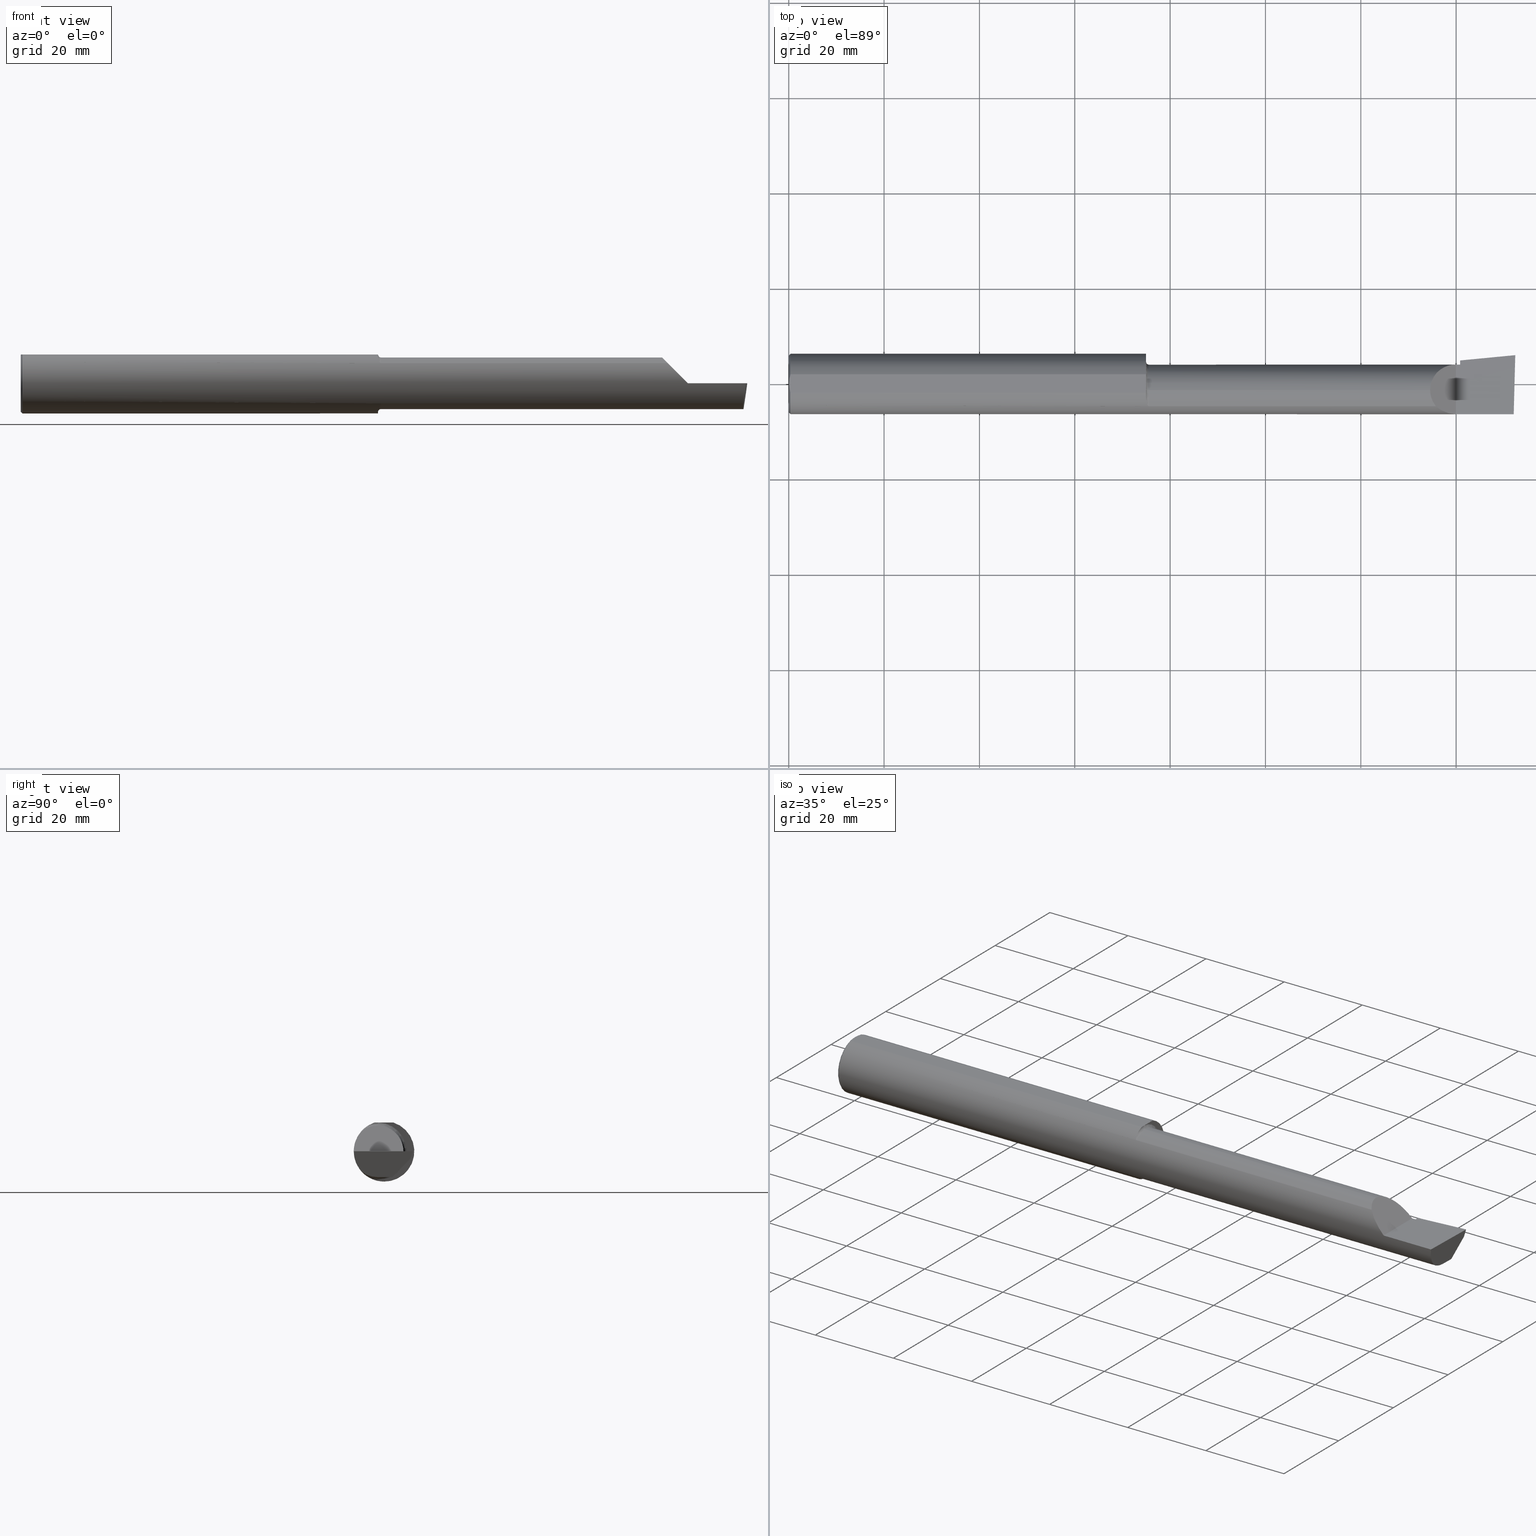
[diagram: canonical four-view strip — front | top / right | iso, engineering-drawing reading convention]
A machine part, canonical four-view strip (front | top / right | iso — engineering-drawing reading convention). The complete STEP part file that produces these views, byte-faithful:
ISO-10303-21;
HEADER;
FILE_DESCRIPTION (( 'STEP AP214' ),
    '1' );
FILE_NAME ('B4903000.STEP',
    '2020-05-06T20:05:47',
    ( '' ),
    ( '' ),
    'SwSTEP 2.0',
    'SolidWorks 2018',
    '' );
FILE_SCHEMA (( 'AUTOMOTIVE_DESIGN' ));
ENDSEC;

DATA;
#1 = PLANE ( 'NONE',  #303 ) ;
#2 = FACE_OUTER_BOUND ( 'NONE', #70, .T. ) ;
#3 = CARTESIAN_POINT ( 'NONE',  ( 5.540349815208493567, 0.05592018782259736837, -0.1832193089843159595 ) ) ;
#4 = LINE ( 'NONE', #632, #526 ) ;
#5 = VECTOR ( 'NONE', #753, 39.37007874015748854 ) ;
#6 = DIRECTION ( 'NONE',  ( 0.0000000000000000000, -1.000000000000000000, 0.0000000000000000000 ) ) ;
#7 = CIRCLE ( 'NONE', #148, 0.2498499999999999888 ) ;
#8 = DIRECTION ( 'NONE',  ( -1.000000000000000000, -0.0000000000000000000, -0.0000000000000000000 ) ) ;
#9 = EDGE_CURVE ( 'NONE', #310, #76, #333, .T. ) ;
#10 = CARTESIAN_POINT ( 'NONE',  ( 4.678149108241350816E-32, 0.1601499999999999591, 4.235963549344508711E-16 ) ) ;
#11 = DIRECTION ( 'NONE',  ( -0.9922060308645490601, 0.02598182930468754051, 0.1218693434051391772 ) ) ;
#12 = FACE_OUTER_BOUND ( 'NONE', #236, .T. ) ;
#13 = ORIENTED_EDGE ( 'NONE', *, *, #163, .F. ) ;
#14 = VERTEX_POINT ( 'NONE', #48 ) ;
#15 = SURFACE_STYLE_USAGE ( .BOTH. , #427 ) ;
#16 = CARTESIAN_POINT ( 'NONE',  ( 5.544999999999999929, 0.2148312740513258212, -0.01988118725737623299 ) ) ;
#17 = DIRECTION ( 'NONE',  ( 9.717439401676380705E-34, 1.707404996040164512E-16, 1.000000000000000000 ) ) ;
#18 = DIRECTION ( 'NONE',  ( -0.0000000000000000000, 1.000000000000000000, 1.224646799147353207E-16 ) ) ;
#19 = EDGE_CURVE ( 'NONE', #496, #695, #371, .T. ) ;
#20 = FILL_AREA_STYLE_COLOUR ( '', #328 ) ;
#21 = PRODUCT_DEFINITION_SHAPE ( 'NONE', 'NONE',  #720 ) ;
#22 =( BOUNDED_CURVE ( )  B_SPLINE_CURVE ( 3, ( #723, #344, #398, #389 ),
 .UNSPECIFIED., .F., .F. ) 
 B_SPLINE_CURVE_WITH_KNOTS ( ( 4, 4 ),
 ( 2.868174658477152583, 2.883234730632701304 ),
 .UNSPECIFIED. ) 
 CURVE ( )  GEOMETRIC_REPRESENTATION_ITEM ( )  RATIONAL_B_SPLINE_CURVE ( ( 1.000000000000000000, 0.9999810996081960335, 0.9999810996081960335, 1.000000000000000000 ) ) 
 REPRESENTATION_ITEM ( '' )  );
#23 = CARTESIAN_POINT ( 'NONE',  ( 4.678149108241350816E-32, -0.2498499999999999888, 4.235963549344508711E-16 ) ) ;
#24 = ORIENTED_EDGE ( 'NONE', *, *, #37, .T. ) ;
#25 = FACE_OUTER_BOUND ( 'NONE', #62, .T. ) ;
#26 = VECTOR ( 'NONE', #81, 39.37007874015748854 ) ;
#27 = AXIS2_PLACEMENT_3D ( 'NONE', #596, #324, #556 ) ;
#28 = CARTESIAN_POINT ( 'NONE',  ( 5.296849999999999170, 0.07186037918017482151, 0.2131500000000000061 ) ) ;
#29 = VERTEX_POINT ( 'NONE', #412 ) ;
#30 = PLANE ( 'NONE',  #258 ) ;
#31 = LINE ( 'NONE', #554, #634 ) ;
#32 = ORIENTED_EDGE ( 'NONE', *, *, #56, .T. ) ;
#33 = ORIENTED_EDGE ( 'NONE', *, *, #106, .F. ) ;
#34 = PRODUCT_RELATED_PRODUCT_CATEGORY ( 'part', '', ( #661 ) ) ;
#35 = EDGE_LOOP ( 'NONE', ( #94, #145 ) ) ;
#36 = LINE ( 'NONE', #309, #334 ) ;
#37 = EDGE_CURVE ( 'NONE', #150, #759, #22, .T. ) ;
#38 = APPLICATION_CONTEXT ( 'automotive_design' ) ;
#39 = CIRCLE ( 'NONE', #99, 0.2348499999999996424 ) ;
#40 = ADVANCED_FACE ( 'NONE', ( #65 ), #760, .F. ) ;
#41 = CARTESIAN_POINT ( 'NONE',  ( 5.510000000000000675, -0.2500000000000000555, -1.849216666712503932E-16 ) ) ;
#42 = ADVANCED_FACE ( 'NONE', ( #214 ), #424, .T. ) ;
#43 = CARTESIAN_POINT ( 'NONE',  ( 2.949999999999990852, -0.1016924291521900947, -0.2293274111511736102 ) ) ;
#44 = FACE_OUTER_BOUND ( 'NONE', #688, .T. ) ;
#45 = ORIENTED_EDGE ( 'NONE', *, *, #156, .F. ) ;
#46 = ORIENTED_EDGE ( 'NONE', *, *, #327, .F. ) ;
#47 = CARTESIAN_POINT ( 'NONE',  ( 0.01499999999999999771, 0.0000000000000000000, 0.0000000000000000000 ) ) ;
#48 = CARTESIAN_POINT ( 'NONE',  ( 2.975000000000000533, -0.1868028301886801024, -0.1659208399614078011 ) ) ;
#49 = AXIS2_PLACEMENT_3D ( 'NONE', #90, #498, #616 ) ;
#50 = PLANE ( 'NONE',  #381 ) ;
#51 = CARTESIAN_POINT ( 'NONE',  ( 5.390325100969867833, -0.2278791102234771215, 0.1196748990301337162 ) ) ;
#52 = EDGE_LOOP ( 'NONE', ( #45, #286, #330, #622 ) ) ;
#53 =( BOUNDED_CURVE ( )  B_SPLINE_CURVE ( 3, ( #505, #28, #558, #422 ),
 .UNSPECIFIED., .F., .T. ) 
 B_SPLINE_CURVE_WITH_KNOTS ( ( 4, 4 ),
 ( 0.0000000000000000000, 1.570796326794897002 ),
 .UNSPECIFIED. ) 
 CURVE ( )  GEOMETRIC_REPRESENTATION_ITEM ( )  RATIONAL_B_SPLINE_CURVE ( ( 1.000000000000000000, 0.8047378541243649375, 0.8047378541243649375, 1.000000000000000000 ) ) 
 REPRESENTATION_ITEM ( '' )  );
#54 = ORIENTED_EDGE ( 'NONE', *, *, #288, .F. ) ;
#55 = FACE_OUTER_BOUND ( 'NONE', #555, .T. ) ;
#56 = EDGE_CURVE ( 'NONE', #635, #93, #611, .T. ) ;
#57 = CYLINDRICAL_SURFACE ( 'NONE', #367, 0.2131499999999999506 ) ;
#58 = CARTESIAN_POINT ( 'NONE',  ( 0.0000000000000000000, 0.0000000000000000000, 0.0000000000000000000 ) ) ;
#59 = VECTOR ( 'NONE', #372, 39.37007874015748143 ) ;
#60 = EDGE_LOOP ( 'NONE', ( #465, #86, #600, #565, #343, #385 ) ) ;
#61 = DIRECTION ( 'NONE',  ( 0.0000000000000000000, 0.0000000000000000000, 1.000000000000000000 ) ) ;
#62 = EDGE_LOOP ( 'NONE', ( #758, #444, #636, #261, #233 ) ) ;
#63 = CARTESIAN_POINT ( 'NONE',  ( 0.01499999999999999771, 0.0000000000000000000, 0.0000000000000000000 ) ) ;
#64 = CARTESIAN_POINT ( 'NONE',  ( 5.544999999999999929, 0.1601500000000002366, 4.235963549344514135E-16 ) ) ;
#65 = FACE_OUTER_BOUND ( 'NONE', #135, .T. ) ;
#66 = AXIS2_PLACEMENT_3D ( 'NONE', #197, #719, #225 ) ;
#67 = CARTESIAN_POINT ( 'NONE',  ( 5.544999999999999929, -0.2500000000000000555, -1.887870261551340527E-16 ) ) ;
#68 = CARTESIAN_POINT ( 'NONE',  ( 2.950000900032403006, -0.05299999999999998462, 0.2378500000000221548 ) ) ;
#69 = EDGE_CURVE ( 'NONE', #449, #470, #649, .T. ) ;
#70 = EDGE_LOOP ( 'NONE', ( #210, #390, #718, #294 ) ) ;
#71 = PLANE ( 'NONE',  #290 ) ;
#72 = CARTESIAN_POINT ( 'NONE',  ( 6.000000000000016875, 0.2381500000000415784, 1.307616116217359986E-13 ) ) ;
#73 = CARTESIAN_POINT ( 'NONE',  ( 0.01499999999999999771, 3.059780027669661931E-17, 0.2498499999999999888 ) ) ;
#74 = CARTESIAN_POINT ( 'NONE',  ( 2.975000000000000533, -0.05299999999999996381, -0.2381499999999996953 ) ) ;
#75 = FACE_OUTER_BOUND ( 'NONE', #85, .T. ) ;
#76 = VERTEX_POINT ( 'NONE', #359 ) ;
#77 =( NAMED_UNIT ( * ) SI_UNIT ( $, .STERADIAN. ) SOLID_ANGLE_UNIT ( ) );
#78 = DIRECTION ( 'NONE',  ( 0.06658005426110771841, -0.6914603011188220627, -0.7193398003386546335 ) ) ;
#79 = VERTEX_POINT ( 'NONE', #454 ) ;
#80 = CARTESIAN_POINT ( 'NONE',  ( 2.975000000000000533, -0.1868028301886802411, 0.1659208399614077178 ) ) ;
#81 = DIRECTION ( 'NONE',  ( 0.0000000000000000000, 0.6963153109074925462, 0.7177360153954946975 ) ) ;
#82 = ORIENTED_EDGE ( 'NONE', *, *, #184, .T. ) ;
#83 = CARTESIAN_POINT ( 'NONE',  ( 0.003000000000000061211, -0.01298133447204027208, 0.2378500000000000614 ) ) ;
#84 = CARTESIAN_POINT ( 'NONE',  ( 2.950000000000000622, 0.0000000000000000000, 0.0000000000000000000 ) ) ;
#85 = EDGE_LOOP ( 'NONE', ( #313, #620, #429, #264, #484, #54, #24, #580 ) ) ;
#86 = ORIENTED_EDGE ( 'NONE', *, *, #132, .T. ) ;
#87 = AXIS2_PLACEMENT_3D ( 'NONE', #647, #266, #297 ) ;
#88 =( BOUNDED_CURVE ( )  B_SPLINE_CURVE ( 3, ( #641, #443, #205, #433 ),
 .UNSPECIFIED., .F., .F. ) 
 B_SPLINE_CURVE_WITH_KNOTS ( ( 4, 4 ),
 ( 3.399950576546887593, 3.405787439796297722 ),
 .UNSPECIFIED. ) 
 CURVE ( )  GEOMETRIC_REPRESENTATION_ITEM ( )  RATIONAL_B_SPLINE_CURVE ( ( 1.000000000000000000, 0.9999971609209656886, 0.9999971609209656886, 1.000000000000000000 ) ) 
 REPRESENTATION_ITEM ( '' )  );
#89 = CARTESIAN_POINT ( 'NONE',  ( 6.000000000000000888, 0.2998500000000000609, 0.2378499999999999504 ) ) ;
#90 = CARTESIAN_POINT ( 'NONE',  ( 2.950000000000000622, 0.0000000000000000000, 0.0000000000000000000 ) ) ;
#91 = DIRECTION ( 'NONE',  ( -1.000000000000000000, -0.0000000000000000000, -0.0000000000000000000 ) ) ;
#92 = EDGE_CURVE ( 'NONE', #470, #449, #39, .T. ) ;
#93 = VERTEX_POINT ( 'NONE', #68 ) ;
#94 = ORIENTED_EDGE ( 'NONE', *, *, #92, .T. ) ;
#95 = CARTESIAN_POINT ( 'NONE',  ( 5.344079160038589293, -0.1868028301886780762, 0.1659208399614099383 ) ) ;
#96 = CIRCLE ( 'NONE', #292, 0.2131499999999997008 ) ;
#97 = ADVANCED_BREP_SHAPE_REPRESENTATION ( 'B4903000', ( #525, #674 ), #336 ) ;
#98 = DIRECTION ( 'NONE',  ( 0.0000000000000000000, -1.138839417068644240E-16, -1.000000000000000000 ) ) ;
#99 = AXIS2_PLACEMENT_3D ( 'NONE', #701, #298, #644 ) ;
#100 = AXIS2_PLACEMENT_3D ( 'NONE', #577, #174, #519 ) ;
#101 = VERTEX_POINT ( 'NONE', #642 ) ;
#102 = AXIS2_PLACEMENT_3D ( 'NONE', #251, #262, #666 ) ;
#103 = ORIENTED_EDGE ( 'NONE', *, *, #156, .T. ) ;
#104 = ORIENTED_EDGE ( 'NONE', *, *, #653, .F. ) ;
#105 = ORIENTED_EDGE ( 'NONE', *, *, #144, .F. ) ;
#106 = EDGE_CURVE ( 'NONE', #635, #629, #353, .T. ) ;
#107 = B_SPLINE_CURVE_WITH_KNOTS ( 'NONE', 3,
 ( #728, #552, #209, #435 ),
 .UNSPECIFIED., .F., .F.,
 ( 4, 4 ),
 ( 0.4999999999997267186, 1.000000000000000000 ),
 .UNSPECIFIED. ) ;
#108 = CARTESIAN_POINT ( 'NONE',  ( 2.965875558094659858, -0.1799506819598047369, -0.1733486322212172137 ) ) ;
#109 = ADVANCED_FACE ( 'NONE', ( #740 ), #57, .T. ) ;
#110 = EDGE_CURVE ( 'NONE', #614, #451, #271, .T. ) ;
#111 = VERTEX_POINT ( 'NONE', #699 ) ;
#112 = LINE ( 'NONE', #628, #709 ) ;
#113 = FACE_OUTER_BOUND ( 'NONE', #593, .T. ) ;
#114 = ADVANCED_FACE ( 'NONE', ( #693 ), #183, .T. ) ;
#115 = CARTESIAN_POINT ( 'NONE',  ( 5.968492717492763333, -0.1868028301886794917, -0.1659208399614086338 ) ) ;
#116 = ORIENTED_EDGE ( 'NONE', *, *, #9, .F. ) ;
#117 = CARTESIAN_POINT ( 'NONE',  ( 6.000000000000000888, -0.05299999999999998462, -0.2131499999999999229 ) ) ;
#118 = EDGE_LOOP ( 'NONE', ( #676, #166, #738 ) ) ;
#119 = CARTESIAN_POINT ( 'NONE',  ( 5.532795049205048166, 0.1343794326159110653, -0.1015966078791004507 ) ) ;
#120 = VERTEX_POINT ( 'NONE', #765 ) ;
#121 = CARTESIAN_POINT ( 'NONE',  ( 2.950000900032403006, -0.05299999999999998462, 0.2378500000000221548 ) ) ;
#122 = EDGE_LOOP ( 'NONE', ( #272, #230 ) ) ;
#123 = ORIENTED_EDGE ( 'NONE', *, *, #414, .F. ) ;
#124 = SURFACE_STYLE_FILL_AREA ( #493 ) ;
#125 = ORIENTED_EDGE ( 'NONE', *, *, #204, .F. ) ;
#126 = DIRECTION ( 'NONE',  ( -0.09584575252021169944, 0.9953961983671798519, 0.0000000000000000000 ) ) ;
#127 = CARTESIAN_POINT ( 'NONE',  ( 0.01499999999999999771, 0.0000000000000000000, -0.2498499999999999888 ) ) ;
#128 = CARTESIAN_POINT ( 'NONE',  ( 2.950000000000000622, -0.05299999999999998462, 0.0000000000000000000 ) ) ;
#129 = APPLICATION_PROTOCOL_DEFINITION ( 'draft international standard', 'automotive_design', 1998, #38 ) ;
#130 = CARTESIAN_POINT ( 'NONE',  ( 2.975000000000000533, -0.1868028301886802411, 0.1659208399614077178 ) ) ;
#131 = CARTESIAN_POINT ( 'NONE',  ( 2.957343635746628507, -0.1582230848692707248, 0.1936715022401941932 ) ) ;
#132 = EDGE_CURVE ( 'NONE', #287, #725, #235, .T. ) ;
#133 = CARTESIAN_POINT ( 'NONE',  ( 0.003000000000000063380, 0.01299872814765626154, 0.2378499999999999226 ) ) ;
#134 = CARTESIAN_POINT ( 'NONE',  ( 2.950000000000000622, 0.2998500000000000609, 0.2378499999999999504 ) ) ;
#135 = EDGE_LOOP ( 'NONE', ( #406, #116, #492, #105, #458, #404 ) ) ;
#136 = FACE_OUTER_BOUND ( 'NONE', #118, .T. ) ;
#137 = CARTESIAN_POINT ( 'NONE',  ( 2.950000000000000622, -0.07650098038590467941, 0.2378500000000000059 ) ) ;
#138 = CARTESIAN_POINT ( 'NONE',  ( 2.955553274544309161, -0.1495649063853958793, 0.2004446339470375427 ) ) ;
#139 = EDGE_CURVE ( 'NONE', #470, #430, #761, .T. ) ;
#140 = CARTESIAN_POINT ( 'NONE',  ( 5.973097331270539989, -0.2278791102234774546, -0.1196748990301325505 ) ) ;
#141 = DIRECTION ( 'NONE',  ( -1.000000000000000000, -0.0000000000000000000, -0.0000000000000000000 ) ) ;
#142 = DIRECTION ( 'NONE',  ( 0.0000000000000000000, 0.0000000000000000000, 1.000000000000000000 ) ) ;
#143 = ORIENTED_EDGE ( 'NONE', *, *, #446, .F. ) ;
#144 = EDGE_CURVE ( 'NONE', #725, #423, #478, .T. ) ;
#145 = ORIENTED_EDGE ( 'NONE', *, *, #69, .T. ) ;
#146 = VECTOR ( 'NONE', #237, 39.37007874015748143 ) ;
#147 = AXIS2_PLACEMENT_3D ( 'NONE', #366, #11, #523 ) ;
#148 = AXIS2_PLACEMENT_3D ( 'NONE', #767, #411, #247 ) ;
#149 = AXIS2_PLACEMENT_3D ( 'NONE', #63, #476, #189 ) ;
#150 = VERTEX_POINT ( 'NONE', #119 ) ;
#151 = ORIENTED_EDGE ( 'NONE', *, *, #144, .T. ) ;
#152 = EDGE_LOOP ( 'NONE', ( #584, #675, #604, #438, #503 ) ) ;
#153 =( BOUNDED_CURVE ( )  B_SPLINE_CURVE ( 3, ( #428, #206, #369, #256 ),
 .UNSPECIFIED., .F., .F. ) 
 B_SPLINE_CURVE_WITH_KNOTS ( ( 4, 4 ),
 ( 5.604538515477355709, 6.283185307179586232 ),
 .UNSPECIFIED. ) 
 CURVE ( )  GEOMETRIC_REPRESENTATION_ITEM ( )  RATIONAL_B_SPLINE_CURVE ( ( 1.000000000000000000, 0.9619867256453034088, 0.9619867256453034088, 1.000000000000000000 ) ) 
 REPRESENTATION_ITEM ( '' )  );
#154 = CARTESIAN_POINT ( 'NONE',  ( 2.950000000000000622, 0.2998500000000000609, 0.2378499999999999504 ) ) ;
#155 = DIRECTION ( 'NONE',  ( 0.0000000000000000000, 0.0000000000000000000, -1.000000000000000000 ) ) ;
#156 = EDGE_CURVE ( 'NONE', #629, #120, #627, .T. ) ;
#157 = CARTESIAN_POINT ( 'NONE',  ( 0.003000000000000035624, 4.000211044293764417E-17, 0.2378500000000000059 ) ) ;
#158 = CARTESIAN_POINT ( 'NONE',  ( 0.0000000000000000000, -0.05299999999999996381, -0.2131499999999999506 ) ) ;
#159 = CARTESIAN_POINT ( 'NONE',  ( 5.510000000000000675, -0.2500000000000000555, -1.849216666712503932E-16 ) ) ;
#160 = ORIENTED_EDGE ( 'NONE', *, *, #681, .T. ) ;
#161 = LINE ( 'NONE', #164, #746 ) ;
#162 = LINE ( 'NONE', #364, #735 ) ;
#163 = EDGE_CURVE ( 'NONE', #415, #652, #466, .T. ) ;
#164 = CARTESIAN_POINT ( 'NONE',  ( 2.976291640117795900, -0.05299999999999998462, 9.489815156492843319E-17 ) ) ;
#165 = VERTEX_POINT ( 'NONE', #403 ) ;
#166 = ORIENTED_EDGE ( 'NONE', *, *, #743, .T. ) ;
#167 = ORIENTED_EDGE ( 'NONE', *, *, #653, .T. ) ;
#168 = ORIENTED_EDGE ( 'NONE', *, *, #331, .F. ) ;
#169 = STYLED_ITEM ( 'NONE', ( #407 ), #525 ) ;
#170 = EDGE_LOOP ( 'NONE', ( #373, #160, #751, #103 ) ) ;
#171 = CARTESIAN_POINT ( 'NONE',  ( 2.970138573936400128, -0.1849738682364337750, -0.1679602226613244043 ) ) ;
#172 = ADVANCED_FACE ( 'NONE', ( #513 ), #323, .T. ) ;
#173 = ORIENTED_EDGE ( 'NONE', *, *, #204, .T. ) ;
#174 = DIRECTION ( 'NONE',  ( -1.000000000000000000, -0.0000000000000000000, -0.0000000000000000000 ) ) ;
#175 = EDGE_CURVE ( 'NONE', #392, #111, #215, .T. ) ;
#176 = AXIS2_PLACEMENT_3D ( 'NONE', #543, #8, #142 ) ;
#177 = AXIS2_PLACEMENT_3D ( 'NONE', #74, #18, #434 ) ;
#178 = LENGTH_MEASURE_WITH_UNIT ( LENGTH_MEASURE( 0.02539999999999999897 ), #531 );
#179 = VECTOR ( 'NONE', #320, 39.37007874015748143 ) ;
#180 = EDGE_LOOP ( 'NONE', ( #257, #673, #238, #173, #431 ) ) ;
#181 = ORIENTED_EDGE ( 'NONE', *, *, #273, .F. ) ;
#182 = CARTESIAN_POINT ( 'NONE',  ( 5.544999999999999929, -0.05299999999999998462, 0.0000000000000000000 ) ) ;
#183 = PLANE ( 'NONE',  #402 ) ;
#184 = EDGE_CURVE ( 'NONE', #101, #310, #4, .T. ) ;
#185 = ORIENTED_EDGE ( 'NONE', *, *, #223, .T. ) ;
#186 = CARTESIAN_POINT ( 'NONE',  ( 2.969285582744839669, -0.1841881072713816569, -0.1688230283719342195 ) ) ;
#187 = CARTESIAN_POINT ( 'NONE',  ( 0.0000000000000000000, -0.05299999999999998462, 0.0000000000000000000 ) ) ;
#188 = TOROIDAL_SURFACE ( 'NONE', #388, 0.2381499999999996953, 0.02499999999999992159 ) ;
#189 = DIRECTION ( 'NONE',  ( 0.0000000000000000000, 0.0000000000000000000, 1.000000000000000000 ) ) ;
#190 = CARTESIAN_POINT ( 'NONE',  ( 2.969290397284159777, -0.1841927918507058615, 0.1688179232533547902 ) ) ;
#191 = CARTESIAN_POINT ( 'NONE',  ( 0.01499999999999999771, 0.07650098038587500870, 0.2378499999999999226 ) ) ;
#192 = AXIS2_PLACEMENT_3D ( 'NONE', #534, #594, #479 ) ;
#193 = DIRECTION ( 'NONE',  ( 0.0000000000000000000, 0.2936076258024031271, 0.9559260233253805694 ) ) ;
#194 = EDGE_CURVE ( 'NONE', #76, #677, #617, .T. ) ;
#195 = ORIENTED_EDGE ( 'NONE', *, *, #194, .T. ) ;
#196 = CARTESIAN_POINT ( 'NONE',  ( 2.962758562425230835, -0.1743135686468876011, 0.1790760091940033216 ) ) ;
#197 = CARTESIAN_POINT ( 'NONE',  ( 2.975000000000000533, -0.05299999999999998462, 0.0000000000000000000 ) ) ;
#198 = DIRECTION ( 'NONE',  ( -0.1053106618241714670, -0.6976485211320174740, -0.7086580314005225256 ) ) ;
#199 = VECTOR ( 'NONE', #212, 39.37007874015748143 ) ;
#200 = VERTEX_POINT ( 'NONE', #397 ) ;
#201 = CLOSED_SHELL ( 'NONE', ( #42, #630, #679, #461, #517, #285, #340, #394, #575, #752, #749, #172, #570, #232, #335, #226, #109, #520, #282, #457, #114, #40 ) ) ;
#202 = CARTESIAN_POINT ( 'NONE',  ( 0.0000000000000000000, 0.0000000000000000000, 0.0000000000000000000 ) ) ;
#203 = DIRECTION ( 'NONE',  ( 0.0000000000000000000, 1.000000000000000000, 0.0000000000000000000 ) ) ;
#204 = EDGE_CURVE ( 'NONE', #430, #451, #7, .T. ) ;
#205 = CARTESIAN_POINT ( 'NONE',  ( 5.541916792879874265, 0.05627666367902717931, -0.1830073912696828786 ) ) ;
#206 = CARTESIAN_POINT ( 'NONE',  ( 5.313215146136122335, -0.1485302233682047890, 0.1967848538638760358 ) ) ;
#207 = CARTESIAN_POINT ( 'NONE',  ( 0.004068542164723867871, -0.02585015905295367025, 0.2378500000000000059 ) ) ;
#208 = AXIS2_PLACEMENT_3D ( 'NONE', #730, #17, #724 ) ;
#209 = CARTESIAN_POINT ( 'NONE',  ( 2.950000000000000622, -0.06096394231309006095, 0.2378500000000000059 ) ) ;
#210 = ORIENTED_EDGE ( 'NONE', *, *, #244, .T. ) ;
#211 = VECTOR ( 'NONE', #714, 39.37007874015748143 ) ;
#212 = DIRECTION ( 'NONE',  ( -1.000000000000000000, -0.0000000000000000000, -0.0000000000000000000 ) ) ;
#213 = EDGE_CURVE ( 'NONE', #629, #727, #550, .T. ) ;
#214 = FACE_OUTER_BOUND ( 'NONE', #509, .T. ) ;
#215 = CIRCLE ( 'NONE', #100, 0.2131499999999997008 ) ;
#216 = ORIENTED_EDGE ( 'NONE', *, *, #337, .F. ) ;
#217 = VECTOR ( 'NONE', #203, 39.37007874015748143 ) ;
#218 = VERTEX_POINT ( 'NONE', #64 ) ;
#219 = AXIS2_PLACEMENT_3D ( 'NONE', #485, #416, #638 ) ;
#220 = AXIS2_PLACEMENT_3D ( 'NONE', #375, #318, #436 ) ;
#221 = ORIENTED_EDGE ( 'NONE', *, *, #574, .T. ) ;
#222 = FACE_OUTER_BOUND ( 'NONE', #170, .T. ) ;
#223 = EDGE_CURVE ( 'NONE', #677, #101, #667, .T. ) ;
#224 = LINE ( 'NONE', #597, #321 ) ;
#225 = DIRECTION ( 'NONE',  ( 0.0000000000000000000, 0.0000000000000000000, 1.000000000000000000 ) ) ;
#226 = ADVANCED_FACE ( 'NONE', ( #686 ), #71, .T. ) ;
#227 = PRODUCT_CONTEXT ( 'NONE', #643, 'mechanical' ) ;
#228 = UNCERTAINTY_MEASURE_WITH_UNIT (LENGTH_MEASURE( 1.000000000000000082E-05 ), #395, 'distance_accuracy_value', 'NONE');
#229 = LENGTH_MEASURE_WITH_UNIT ( LENGTH_MEASURE( 0.02539999999999999897 ), #338 );
#230 = ORIENTED_EDGE ( 'NONE', *, *, #426, .F. ) ;
#231 = DIRECTION ( 'NONE',  ( 0.9953961983671800740, 0.09584575252021025615, -1.636475167022361930E-17 ) ) ;
#232 = ADVANCED_FACE ( 'NONE', ( #222 ), #494, .T. ) ;
#233 = ORIENTED_EDGE ( 'NONE', *, *, #175, .T. ) ;
#234 = DIRECTION ( 'NONE',  ( 1.000000000000000000, 0.0000000000000000000, 0.0000000000000000000 ) ) ;
#235 = LINE ( 'NONE', #405, #566 ) ;
#236 = EDGE_LOOP ( 'NONE', ( #707, #379, #640, #623, #448 ) ) ;
#237 = DIRECTION ( 'NONE',  ( -1.000000000000000000, -0.0000000000000000000, -0.0000000000000000000 ) ) ;
#238 = ORIENTED_EDGE ( 'NONE', *, *, #139, .T. ) ;
#239 = LENGTH_MEASURE_WITH_UNIT ( LENGTH_MEASURE( 0.02539999999999999897 ), #662 );
#240 = PRESENTATION_LAYER_ASSIGNMENT (  '', '', ( #169 ) ) ;
#241 = DIRECTION ( 'NONE',  ( 0.0000000000000000000, 0.0000000000000000000, 1.000000000000000000 ) ) ;
#242 = DIRECTION ( 'NONE',  ( 0.0000000000000000000, 0.0000000000000000000, 1.000000000000000000 ) ) ;
#243 = CARTESIAN_POINT ( 'NONE',  ( 2.952700302592144332, -0.1312404656039937167, 0.2128935242986057796 ) ) ;
#244 = EDGE_CURVE ( 'NONE', #652, #739, #153, .T. ) ;
#245 = CARTESIAN_POINT ( 'NONE',  ( 2.950000000000000622, -0.08036415094339764698, -0.2365726648265745469 ) ) ;
#246 = CARTESIAN_POINT ( 'NONE',  ( 0.01499999999998188026, -0.07650098038590467941, 0.2378500000000000059 ) ) ;
#247 = DIRECTION ( 'NONE',  ( 0.0000000000000000000, 0.0000000000000000000, 1.000000000000000000 ) ) ;
#248 = LINE ( 'NONE', #73, #682 ) ;
#249 = CARTESIAN_POINT ( 'NONE',  ( 0.008199648822849016708, 0.05156445313451110679, 0.2378500000000000059 ) ) ;
#250 = CARTESIAN_POINT ( 'NONE',  ( 2.967016733372314530, -0.1817333077058777557, -0.1714754572696055857 ) ) ;
#251 = CARTESIAN_POINT ( 'NONE',  ( 2.950000000000000622, 0.1851499999999997037, 0.0000000000000000000 ) ) ;
#252 = AXIS2_PLACEMENT_3D ( 'NONE', #128, #472, #61 ) ;
#253 = ORIENTED_EDGE ( 'NONE', *, *, #538, .T. ) ;
#254 = UNCERTAINTY_MEASURE_WITH_UNIT (LENGTH_MEASURE( 1.000000000000000082E-05 ), #544, 'distance_accuracy_value', 'NONE');
#255 = CARTESIAN_POINT ( 'NONE',  ( 2.973548866468136875, -0.1868028301907328492, 0.1659208399590970107 ) ) ;
#256 = CARTESIAN_POINT ( 'NONE',  ( 5.296849999999999170, -0.05299999999999998462, 0.2131499999999999506 ) ) ;
#257 = ORIENTED_EDGE ( 'NONE', *, *, #400, .F. ) ;
#258 = AXIS2_PLACEMENT_3D ( 'NONE', #89, #98, #507 ) ;
#259 = DIRECTION ( 'NONE',  ( 0.0000000000000000000, 0.6963153109074925462, 0.7177360153954946975 ) ) ;
#260 = DIRECTION ( 'NONE',  ( -0.0000000000000000000, 0.0000000000000000000, 1.000000000000000000 ) ) ;
#261 = ORIENTED_EDGE ( 'NONE', *, *, #346, .T. ) ;
#262 = DIRECTION ( 'NONE',  ( 1.000000000000000000, 0.0000000000000000000, 0.0000000000000000000 ) ) ;
#263 = DIRECTION ( 'NONE',  ( -1.000000000000000000, -0.0000000000000000000, -0.0000000000000000000 ) ) ;
#264 = ORIENTED_EDGE ( 'NONE', *, *, #569, .T. ) ;
#265 = SHAPE_DEFINITION_REPRESENTATION ( #21, #97 ) ;
#266 = DIRECTION ( 'NONE',  ( -1.000000000000000000, -0.0000000000000000000, -0.0000000000000000000 ) ) ;
#267 = EDGE_CURVE ( 'NONE', #695, #79, #609, .T. ) ;
#268 = COLOUR_RGB ( '',0.7529411764705882248, 0.7529411764705882248, 0.7529411764705882248 ) ;
#269 = VECTOR ( 'NONE', #729, 39.37007874015748143 ) ;
#270 = ORIENTED_EDGE ( 'NONE', *, *, #163, .T. ) ;
#271 = LINE ( 'NONE', #296, #146 ) ;
#272 = ORIENTED_EDGE ( 'NONE', *, *, #288, .T. ) ;
#273 = EDGE_CURVE ( 'NONE', #759, #293, #511, .T. ) ;
#274 = VERTEX_POINT ( 'NONE', #708 ) ;
#275 = FACE_OUTER_BOUND ( 'NONE', #60, .T. ) ;
#276 = EDGE_LOOP ( 'NONE', ( #82, #387, #195, #185 ) ) ;
#277 = MECHANICAL_DESIGN_GEOMETRIC_PRESENTATION_REPRESENTATION (  '', ( #169 ), #319 ) ;
#278 = DIRECTION ( 'NONE',  ( -0.7071067811865511255, 0.0000000000000000000, 0.7071067811865440200 ) ) ;
#279 = EDGE_CURVE ( 'NONE', #423, #310, #224, .T. ) ;
#280 = ORIENTED_EDGE ( 'NONE', *, *, #346, .F. ) ;
#281 = VECTOR ( 'NONE', #703, 39.37007874015748143 ) ;
#282 = ADVANCED_FACE ( 'NONE', ( #445 ), #419, .F. ) ;
#283 = CIRCLE ( 'NONE', #149, 0.2498499999999999888 ) ;
#284 = CARTESIAN_POINT ( 'NONE',  ( 2.973547768521294987, -0.1868028301886801579, -0.1659208399614078844 ) ) ;
#285 = ADVANCED_FACE ( 'NONE', ( #55 ), #305, .T. ) ;
#286 = ORIENTED_EDGE ( 'NONE', *, *, #213, .T. ) ;
#287 = VERTEX_POINT ( 'NONE', #480 ) ;
#288 = EDGE_CURVE ( 'NONE', #150, #274, #598, .T. ) ;
#289 = AXIS2_PLACEMENT_3D ( 'NONE', #756, #345, #689 ) ;
#290 = AXIS2_PLACEMENT_3D ( 'NONE', #665, #610, #260 ) ;
#291 = CARTESIAN_POINT ( 'NONE',  ( 5.510000000000000675, -0.2498499999999999888, -1.849216666712503932E-16 ) ) ;
#292 = AXIS2_PLACEMENT_3D ( 'NONE', #348, #764, #408 ) ;
#293 = VERTEX_POINT ( 'NONE', #668 ) ;
#294 = ORIENTED_EDGE ( 'NONE', *, *, #768, .T. ) ;
#295 = CARTESIAN_POINT ( 'NONE',  ( 5.534569588231482484, 0.1159501401920730174, -0.1355866241796506999 ) ) ;
#296 = CARTESIAN_POINT ( 'NONE',  ( 0.0000000000000000000, -0.07650098038587496707, 0.2378499999999999226 ) ) ;
#297 = DIRECTION ( 'NONE',  ( 0.0000000000000000000, 0.0000000000000000000, 1.000000000000000000 ) ) ;
#298 = DIRECTION ( 'NONE',  ( -1.000000000000000000, -0.0000000000000000000, -0.0000000000000000000 ) ) ;
#299 = CARTESIAN_POINT ( 'NONE',  ( 2.961285743882608124, -0.1704402150608125832, -0.1827701868778688066 ) ) ;
#300 = CARTESIAN_POINT ( 'NONE',  ( 2.951680550596498698, -0.1214972057705740599, 0.2186080375779515528 ) ) ;
#301 = CYLINDRICAL_SURFACE ( 'NONE', #704, 0.2131499999999999506 ) ;
#302 = CARTESIAN_POINT ( 'NONE',  ( 5.296849999999999170, -0.05299999999999998462, 0.2131499999999999506 ) ) ;
#303 = AXIS2_PLACEMENT_3D ( 'NONE', #58, #474, #763 ) ;
#304 = CARTESIAN_POINT ( 'NONE',  ( 2.975000000000000533, -0.05299999999999998462, 0.2381499999999996953 ) ) ;
#305 = PLANE ( 'NONE',  #608 ) ;
#306 = CARTESIAN_POINT ( 'NONE',  ( 5.966195468375009803, -0.05299999999999998462, -0.2131499999999999229 ) ) ;
#307 = CARTESIAN_POINT ( 'NONE',  ( 5.528944985009567326, 0.1743638780700113855, -0.06000000000000002554 ) ) ;
#308 = ORIENTED_EDGE ( 'NONE', *, *, #267, .T. ) ;
#309 = CARTESIAN_POINT ( 'NONE',  ( 5.544999999999999929, 0.2148312740513258212, -0.01988118725737623299 ) ) ;
#310 = VERTEX_POINT ( 'NONE', #715 ) ;
#311 = CARTESIAN_POINT ( 'NONE',  ( 2.970144309637440916, -0.1849788583324340763, 0.1679547276881058482 ) ) ;
#312 = DIRECTION ( 'NONE',  ( 0.0000000000000000000, 0.0000000000000000000, -1.000000000000000000 ) ) ;
#313 = ORIENTED_EDGE ( 'NONE', *, *, #446, .T. ) ;
#314 = ORIENTED_EDGE ( 'NONE', *, *, #694, .T. ) ;
#315 = B_SPLINE_CURVE_WITH_KNOTS ( 'NONE', 3,
 ( #439, #284, #354, #171, #186, #250, #108, #650, #299, #646, #590, #766, #43, #245 ),
 .UNSPECIFIED., .F., .F.,
 ( 4, 2, 2, 2, 2, 2, 4 ),
 ( 1.967619685358722855E-07, 0.0001090840123077841469, 0.0002179712626470324229, 0.0004357457633255543725, 0.0008712947646826149683, 0.001742392767396734642, 0.003484588772824973122 ),
 .UNSPECIFIED. ) ;
#316 = CARTESIAN_POINT ( 'NONE',  ( 0.01120982745448973784, -0.06412238594540853320, 0.2378500000000000059 ) ) ;
#317 = DIRECTION ( 'NONE',  ( 1.000000000000000000, 0.0000000000000000000, 0.0000000000000000000 ) ) ;
#318 = DIRECTION ( 'NONE',  ( -1.000000000000000000, -0.0000000000000000000, -0.0000000000000000000 ) ) ;
#319 =( GEOMETRIC_REPRESENTATION_CONTEXT ( 3 ) GLOBAL_UNCERTAINTY_ASSIGNED_CONTEXT ( ( #254 ) ) GLOBAL_UNIT_ASSIGNED_CONTEXT ( ( #544, #488, #77 ) ) REPRESENTATION_CONTEXT ( 'NONE', 'WORKASPACE' ) );
#320 = DIRECTION ( 'NONE',  ( -0.0000000000000000000, 1.000000000000000000, -0.0000000000000000000 ) ) ;
#321 = VECTOR ( 'NONE', #198, 39.37007874015748143 ) ;
#322 = CIRCLE ( 'NONE', #475, 0.2131500000000002282 ) ;
#323 = CONICAL_SURFACE ( 'NONE', #447, 0.2498499999999999888, 0.7853981633974601584 ) ;
#324 = DIRECTION ( 'NONE',  ( -1.000000000000000000, -0.0000000000000000000, -0.0000000000000000000 ) ) ;
#325 = ORIENTED_EDGE ( 'NONE', *, *, #213, .F. ) ;
#326 = CARTESIAN_POINT ( 'NONE',  ( 0.0000000000000000000, -0.05299999999999998462, 0.0000000000000000000 ) ) ;
#327 = EDGE_CURVE ( 'NONE', #120, #79, #747, .T. ) ;
#328 = COLOUR_RGB ( '',0.7529411764705882248, 0.7529411764705882248, 0.7529411764705882248 ) ;
#329 = ORIENTED_EDGE ( 'NONE', *, *, #737, .F. ) ;
#330 = ORIENTED_EDGE ( 'NONE', *, *, #421, .T. ) ;
#331 = EDGE_CURVE ( 'NONE', #293, #165, #162, .T. ) ;
#332 = ORIENTED_EDGE ( 'NONE', *, *, #685, .T. ) ;
#333 = LINE ( 'NONE', #639, #696 ) ;
#334 = VECTOR ( 'NONE', #259, 39.37007874015748854 ) ;
#335 = ADVANCED_FACE ( 'NONE', ( #136 ), #613, .T. ) ;
#336 =( GEOMETRIC_REPRESENTATION_CONTEXT ( 3 ) GLOBAL_UNCERTAINTY_ASSIGNED_CONTEXT ( ( #228 ) ) GLOBAL_UNIT_ASSIGNED_CONTEXT ( ( #395, #754, #687 ) ) REPRESENTATION_CONTEXT ( 'NONE', 'WORKASPACE' ) );
#337 = EDGE_CURVE ( 'NONE', #614, #200, #420, .T. ) ;
#338 =( LENGTH_UNIT ( ) NAMED_UNIT ( * ) SI_UNIT ( $, .METRE. ) );
#339 = CARTESIAN_POINT ( 'NONE',  ( 5.544999999999999929, -0.05299999999999998462, -0.2131499999999999229 ) ) ;
#340 = ADVANCED_FACE ( 'NONE', ( #573 ), #557, .T. ) ;
#341 = PRESENTATION_STYLE_ASSIGNMENT (( #518 ) ) ;
#342 = TOROIDAL_SURFACE ( 'NONE', #87, 0.2381499999999996953, 0.02499999999999992159 ) ;
#343 = ORIENTED_EDGE ( 'NONE', *, *, #538, .F. ) ;
#344 = CARTESIAN_POINT ( 'NONE',  ( 5.536975816846314125, 0.1338694103809240643, -0.1025372660271250541 ) ) ;
#345 = DIRECTION ( 'NONE',  ( -1.000000000000000000, -0.0000000000000000000, -0.0000000000000000000 ) ) ;
#346 = EDGE_CURVE ( 'NONE', #200, #392, #432, .T. ) ;
#347 = DIRECTION ( 'NONE',  ( 0.02617694830786730306, 0.9996573249755573709, -2.890951868598569845E-18 ) ) ;
#348 = CARTESIAN_POINT ( 'NONE',  ( 2.975000000000000533, -0.05299999999999998462, 0.0000000000000000000 ) ) ;
#349 = LINE ( 'NONE', #10, #211 ) ;
#350 = AXIS2_PLACEMENT_3D ( 'NONE', #304, #6, #355 ) ;
#351 = PLANE ( 'NONE',  #562 ) ;
#352 = CARTESIAN_POINT ( 'NONE',  ( 5.987221270274238449, -0.2498499999999999888, -2.376254313274097985E-16 ) ) ;
#353 = CIRCLE ( 'NONE', #252, 0.2381499999999996953 ) ;
#354 = CARTESIAN_POINT ( 'NONE',  ( 2.972232603162240139, -0.1862758070845882408, -0.1665151405181416744 ) ) ;
#355 = DIRECTION ( 'NONE',  ( 0.0000000000000000000, 0.0000000000000000000, -1.000000000000000000 ) ) ;
#356 = DIRECTION ( 'NONE',  ( 0.09165774897393347276, -0.9519021185660623274, 0.2923717047227273880 ) ) ;
#357 =( BOUNDED_CURVE ( )  B_SPLINE_CURVE ( 3, ( #691, #140, #486, #352 ),
 .UNSPECIFIED., .F., .F. ) 
 B_SPLINE_CURVE_WITH_KNOTS ( ( 4, 4 ),
 ( 0.6344818218798808918, 1.360746882514761280 ),
 .UNSPECIFIED. ) 
 CURVE ( )  GEOMETRIC_REPRESENTATION_ITEM ( )  RATIONAL_B_SPLINE_CURVE ( ( 1.000000000000000000, 0.9565258159410998662, 0.9565258159410998662, 1.000000000000000000 ) ) 
 REPRESENTATION_ITEM ( '' )  );
#358 = CARTESIAN_POINT ( 'NONE',  ( 5.528944985009567326, 0.1743638780700113855, -0.06000000000000002554 ) ) ;
#359 = CARTESIAN_POINT ( 'NONE',  ( 5.966195468375009803, -0.05299999999999998462, -0.2131499999999999229 ) ) ;
#360 = LINE ( 'NONE', #67, #217 ) ;
#361 = ORIENTED_EDGE ( 'NONE', *, *, #331, .T. ) ;
#362 = B_SPLINE_CURVE_WITH_KNOTS ( 'NONE', 3,
 ( #721, #316, #551, #207, #83, #157 ),
 .UNSPECIFIED., .F., .F.,
 ( 4, 2, 4 ),
 ( 0.002692677063605044066, 0.003672889278957895340, 0.004653101494310745746 ),
 .UNSPECIFIED. ) ;
#363 = DIRECTION ( 'NONE',  ( 0.0000000000000000000, -1.000000000000000000, 1.138839417068644240E-16 ) ) ;
#364 = CARTESIAN_POINT ( 'NONE',  ( 5.544999999999999929, 0.1943384830701255506, -1.847417073174052935E-15 ) ) ;
#365 = EDGE_CURVE ( 'NONE', #451, #496, #362, .T. ) ;
#366 = CARTESIAN_POINT ( 'NONE',  ( 5.963949576795525509, -0.1303119248116718643, -0.2149526021148598365 ) ) ;
#367 = AXIS2_PLACEMENT_3D ( 'NONE', #187, #487, #533 ) ;
#368 = AXIS2_PLACEMENT_3D ( 'NONE', #549, #317, #312 ) ;
#369 = CARTESIAN_POINT ( 'NONE',  ( 5.296849999999999170, -0.1021668565906563297, 0.2131500000000000061 ) ) ;
#370 = EDGE_LOOP ( 'NONE', ( #660, #151, #143, #361 ) ) ;
#371 = B_SPLINE_CURVE_WITH_KNOTS ( 'NONE', 3,
 ( #713, #133, #717, #249, #702, #706 ),
 .UNSPECIFIED., .F., .F.,
 ( 4, 2, 4 ),
 ( 0.004653101494310745746, 0.005634627094920352519, 0.006616152695529959292 ),
 .UNSPECIFIED. ) ;
#372 = DIRECTION ( 'NONE',  ( 0.0000000000000000000, 1.000000000000000000, -1.707404996040164265E-16 ) ) ;
#373 = ORIENTED_EDGE ( 'NONE', *, *, #327, .T. ) ;
#374 = CARTESIAN_POINT ( 'NONE',  ( 5.510000000000000675, 0.1601499999999999035, -1.849216666712503932E-16 ) ) ;
#375 = CARTESIAN_POINT ( 'NONE',  ( 0.0000000000000000000, 0.0000000000000000000, 0.0000000000000000000 ) ) ;
#376 = DIRECTION ( 'NONE',  ( 1.000000000000000000, 0.0000000000000000000, 0.0000000000000000000 ) ) ;
#377 = CARTESIAN_POINT ( 'NONE',  ( 2.950000000000000622, -0.08036415094339764698, 0.2365726648265745469 ) ) ;
#378 = DIRECTION ( 'NONE',  ( 0.9953961983671787417, 0.09584575252022461966, -1.099304038737262581E-16 ) ) ;
#379 = ORIENTED_EDGE ( 'NONE', *, *, #400, .T. ) ;
#380 = EDGE_CURVE ( 'NONE', #93, #29, #107, .T. ) ;
#381 = AXIS2_PLACEMENT_3D ( 'NONE', #41, #413, #278 ) ;
#382 = CARTESIAN_POINT ( 'NONE',  ( 5.544999999999999929, -0.05299999999999998462, -0.2131499999999999229 ) ) ;
#383 = EDGE_LOOP ( 'NONE', ( #541, #13, #483, #104 ) ) ;
#384 = CARTESIAN_POINT ( 'NONE',  ( 5.992127980275561150, 0.2189633278254524695, -0.06000000000000002554 ) ) ;
#385 = ORIENTED_EDGE ( 'NONE', *, *, #506, .F. ) ;
#386 = ORIENTED_EDGE ( 'NONE', *, *, #110, .F. ) ;
#387 = ORIENTED_EDGE ( 'NONE', *, *, #9, .T. ) ;
#388 = AXIS2_PLACEMENT_3D ( 'NONE', #542, #141, #242 ) ;
#389 = CARTESIAN_POINT ( 'NONE',  ( 5.544999999999999929, 0.1328281892403430642, -0.1044069278527784972 ) ) ;
#390 = ORIENTED_EDGE ( 'NONE', *, *, #481, .T. ) ;
#391 = EDGE_CURVE ( 'NONE', #677, #727, #710, .T. ) ;
#392 = VERTEX_POINT ( 'NONE', #130 ) ;
#393 = SURFACE_STYLE_FILL_AREA ( #680 ) ;
#394 = ADVANCED_FACE ( 'NONE', ( #113 ), #30, .F. ) ;
#395 =( CONVERSION_BASED_UNIT ( 'INCH', #229 ) LENGTH_UNIT ( ) NAMED_UNIT ( #624 ) );
#396 = LINE ( 'NONE', #664, #672 ) ;
#397 = CARTESIAN_POINT ( 'NONE',  ( 2.950000000000000622, -0.08036415094339764698, 0.2365726648265745469 ) ) ;
#398 = CARTESIAN_POINT ( 'NONE',  ( 5.541044210672206205, 0.1333523194825144698, -0.1034740570574020080 ) ) ;
#399 = VERTEX_POINT ( 'NONE', #374 ) ;
#400 = EDGE_CURVE ( 'NONE', #449, #496, #248, .T. ) ;
#401 = ORIENTED_EDGE ( 'NONE', *, *, #56, .F. ) ;
#402 = AXIS2_PLACEMENT_3D ( 'NONE', #409, #532, #126 ) ;
#403 = CARTESIAN_POINT ( 'NONE',  ( 5.544999999999999929, 0.1943384830701262445, 4.235967783249002216E-16 ) ) ;
#404 = ORIENTED_EDGE ( 'NONE', *, *, #694, .F. ) ;
#405 = CARTESIAN_POINT ( 'NONE',  ( 5.987226101480005447, -0.2496655036952227513, -2.376259648801821009E-16 ) ) ;
#406 = ORIENTED_EDGE ( 'NONE', *, *, #587, .T. ) ;
#407 = PRESENTATION_STYLE_ASSIGNMENT (( #15 ) ) ;
#408 = DIRECTION ( 'NONE',  ( 0.0000000000000000000, 0.0000000000000000000, 1.000000000000000000 ) ) ;
#409 = CARTESIAN_POINT ( 'NONE',  ( 5.535684672073140078, 0.1043695517189345834, -0.2900000000000002021 ) ) ;
#410 = CARTESIAN_POINT ( 'NONE',  ( 2.950000000000000622, -0.05299999999999996381, -0.2381499999999996953 ) ) ;
#411 = DIRECTION ( 'NONE',  ( -1.000000000000000000, -0.0000000000000000000, -0.0000000000000000000 ) ) ;
#412 = CARTESIAN_POINT ( 'NONE',  ( 2.950000000000000622, -0.06494989539702575310, 0.2378500000000000059 ) ) ;
#413 = DIRECTION ( 'NONE',  ( -0.7071067811865440200, 0.0000000000000000000, -0.7071067811865511255 ) ) ;
#414 = EDGE_CURVE ( 'NONE', #695, #430, #283, .T. ) ;
#415 = VERTEX_POINT ( 'NONE', #619 ) ;
#416 = DIRECTION ( 'NONE',  ( -1.000000000000000000, -0.0000000000000000000, -0.0000000000000000000 ) ) ;
#417 = CIRCLE ( 'NONE', #192, 0.2381499999999996953 ) ;
#418 = DIRECTION ( 'NONE',  ( -1.104388423966789920E-16, 0.0000000000000000000, -1.000000000000000000 ) ) ;
#419 = PLANE ( 'NONE',  #528 ) ;
#420 = CIRCLE ( 'NONE', #49, 0.2498499999999999888 ) ;
#421 = EDGE_CURVE ( 'NONE', #727, #14, #96, .T. ) ;
#422 = CARTESIAN_POINT ( 'NONE',  ( 5.510000000000000675, 0.1601499999999999035, -1.849216666712503932E-16 ) ) ;
#423 = VERTEX_POINT ( 'NONE', #384 ) ;
#424 = CYLINDRICAL_SURFACE ( 'NONE', #219, 0.2131499999999999506 ) ;
#425 = CARTESIAN_POINT ( 'NONE',  ( 2.950001800035618515, -0.04901601311796581484, 0.2378500024320483464 ) ) ;
#426 = EDGE_CURVE ( 'NONE', #150, #274, #605, .T. ) ;
#427 = SURFACE_SIDE_STYLE ('',( #124 ) ) ;
#428 = CARTESIAN_POINT ( 'NONE',  ( 5.344079160038589293, -0.1868028301886780762, 0.1659208399614099383 ) ) ;
#429 = ORIENTED_EDGE ( 'NONE', *, *, #184, .F. ) ;
#430 = VERTEX_POINT ( 'NONE', #127 ) ;
#431 = ORIENTED_EDGE ( 'NONE', *, *, #365, .T. ) ;
#432 = B_SPLINE_CURVE_WITH_KNOTS ( 'NONE', 3,
 ( #377, #731, #648, #300, #243, #138, #131, #539, #196, #592, #536, #190, #311, #603, #255, #80 ),
 .UNSPECIFIED., .F., .F.,
 ( 4, 2, 2, 2, 2, 2, 2, 4 ),
 ( 0.0001034694911878423069, 0.0009591263138367670449, 0.001814783136485691823, 0.002670439959134616494, 0.003098268370459083924, 0.003312182576121317640, 0.003419139678952433630, 0.003526096781783549620 ),
 .UNSPECIFIED. ) ;
#433 = CARTESIAN_POINT ( 'NONE',  ( 5.540349815208493567, 0.05592018782259736837, -0.1832193089843159595 ) ) ;
#434 = DIRECTION ( 'NONE',  ( 0.0000000000000000000, 0.0000000000000000000, 1.000000000000000000 ) ) ;
#435 = CARTESIAN_POINT ( 'NONE',  ( 2.950000000000000622, -0.06494989539702575310, 0.2378500000000000059 ) ) ;
#436 = DIRECTION ( 'NONE',  ( 0.0000000000000000000, 0.0000000000000000000, 1.000000000000000000 ) ) ;
#437 = CARTESIAN_POINT ( 'NONE',  ( 0.003000000000000035624, 4.000211044293764417E-17, 0.2378500000000000059 ) ) ;
#438 = ORIENTED_EDGE ( 'NONE', *, *, #455, .T. ) ;
#439 = CARTESIAN_POINT ( 'NONE',  ( 2.975000000000000533, -0.1868028301886801024, -0.1659208399614078011 ) ) ;
#440 = EDGE_CURVE ( 'NONE', #563, #274, #88, .T. ) ;
#441 = LINE ( 'NONE', #134, #281 ) ;
#442 = VECTOR ( 'NONE', #78, 39.37007874015748854 ) ;
#443 = CARTESIAN_POINT ( 'NONE',  ( 5.543466858877803993, 0.05663251955087997974, -0.1827944341085907531 ) ) ;
#444 = ORIENTED_EDGE ( 'NONE', *, *, #380, .T. ) ;
#445 = FACE_OUTER_BOUND ( 'NONE', #370, .T. ) ;
#446 = EDGE_CURVE ( 'NONE', #293, #423, #396, .T. ) ;
#447 = AXIS2_PLACEMENT_3D ( 'NONE', #47, #529, #462 ) ;
#448 = ORIENTED_EDGE ( 'NONE', *, *, #139, .F. ) ;
#449 = VERTEX_POINT ( 'NONE', #599 ) ;
#450 = DIMENSIONAL_EXPONENTS ( 1.000000000000000000, 0.0000000000000000000, 0.0000000000000000000, 0.0000000000000000000, 0.0000000000000000000, 0.0000000000000000000, 0.0000000000000000000 ) ;
#451 = VERTEX_POINT ( 'NONE', #246 ) ;
#452 = CIRCLE ( 'NONE', #669, 0.2131500000000002282 ) ;
#453 = EDGE_CURVE ( 'NONE', #218, #165, #360, .T. ) ;
#454 = CARTESIAN_POINT ( 'NONE',  ( 2.950000000000000622, 0.07650098038587503646, 0.2378500000000000059 ) ) ;
#455 = EDGE_CURVE ( 'NONE', #697, #14, #521, .T. ) ;
#456 = STYLED_ITEM ( 'NONE', ( #341 ), #97 ) ;
#457 = ADVANCED_FACE ( 'NONE', ( #75 ), #351, .F. ) ;
#458 = ORIENTED_EDGE ( 'NONE', *, *, #132, .F. ) ;
#459 = DIRECTION ( 'NONE',  ( -1.000000000000000000, 5.691349986800549142E-18, -0.0000000000000000000 ) ) ;
#460 = ORIENTED_EDGE ( 'NONE', *, *, #380, .F. ) ;
#461 = ADVANCED_FACE ( 'NONE', ( #44 ), #342, .F. ) ;
#462 = DIRECTION ( 'NONE',  ( 0.0000000000000000000, 0.0000000000000000000, -1.000000000000000000 ) ) ;
#463 = ORIENTED_EDGE ( 'NONE', *, *, #440, .F. ) ;
#464 = ORIENTED_EDGE ( 'NONE', *, *, #621, .F. ) ;
#465 = ORIENTED_EDGE ( 'NONE', *, *, #501, .F. ) ;
#466 =( BOUNDED_CURVE ( )  B_SPLINE_CURVE ( 3, ( #291, #583, #51, #637 ),
 .UNSPECIFIED., .F., .F. ) 
 B_SPLINE_CURVE_WITH_KNOTS ( ( 4, 4 ),
 ( 4.712388980384689674, 5.438654041019578500 ),
 .UNSPECIFIED. ) 
 CURVE ( )  GEOMETRIC_REPRESENTATION_ITEM ( )  RATIONAL_B_SPLINE_CURVE ( ( 1.000000000000000000, 0.9565258159410988670, 0.9565258159410988670, 1.000000000000000000 ) ) 
 REPRESENTATION_ITEM ( '' )  );
#467 = CARTESIAN_POINT ( 'NONE',  ( 5.544999999999999929, -0.05299999999999998462, 0.0000000000000000000 ) ) ;
#468 = CARTESIAN_POINT ( 'NONE',  ( 5.991023571893942190, 0.2162715254282659427, -0.06841772571928585178 ) ) ;
#469 = SURFACE_SIDE_STYLE ('',( #393 ) ) ;
#470 = VERTEX_POINT ( 'NONE', #502 ) ;
#471 = CARTESIAN_POINT ( 'NONE',  ( 5.532795049205048166, 0.1343794326159110653, -0.1015966078791004507 ) ) ;
#472 = DIRECTION ( 'NONE',  ( -1.000000000000000000, -0.0000000000000000000, -0.0000000000000000000 ) ) ;
#473 = CARTESIAN_POINT ( 'NONE',  ( 2.950000000000000622, -0.04105010460297417452, 0.2378500000000000059 ) ) ;
#474 = DIRECTION ( 'NONE',  ( 1.000000000000000000, 0.0000000000000000000, 0.0000000000000000000 ) ) ;
#475 = AXIS2_PLACEMENT_3D ( 'NONE', #182, #589, #618 ) ;
#476 = DIRECTION ( 'NONE',  ( -1.000000000000000000, -0.0000000000000000000, -0.0000000000000000000 ) ) ;
#477 = FACE_OUTER_BOUND ( 'NONE', #52, .T. ) ;
#478 = LINE ( 'NONE', #468, #5 ) ;
#479 = DIRECTION ( 'NONE',  ( 0.0000000000000000000, 0.0000000000000000000, 1.000000000000000000 ) ) ;
#480 = CARTESIAN_POINT ( 'NONE',  ( 5.987221270274238449, -0.2498499999999999888, -2.376254313274097985E-16 ) ) ;
#481 = EDGE_CURVE ( 'NONE', #739, #111, #31, .T. ) ;
#482 = CARTESIAN_POINT ( 'NONE',  ( 5.968492717492763333, -0.1868028301886794917, -0.1659208399614086338 ) ) ;
#483 = ORIENTED_EDGE ( 'NONE', *, *, #506, .T. ) ;
#484 = ORIENTED_EDGE ( 'NONE', *, *, #440, .T. ) ;
#485 = CARTESIAN_POINT ( 'NONE',  ( 0.0000000000000000000, -0.05299999999999998462, 0.0000000000000000000 ) ) ;
#486 = CARTESIAN_POINT ( 'NONE',  ( 5.979623920331825992, -0.2498499999999999610, -0.06185424669427504185 ) ) ;
#487 = DIRECTION ( 'NONE',  ( -1.000000000000000000, -0.0000000000000000000, -0.0000000000000000000 ) ) ;
#488 =( NAMED_UNIT ( * ) PLANE_ANGLE_UNIT ( ) SI_UNIT ( $, .RADIAN. ) );
#489 = DIRECTION ( 'NONE',  ( -1.000000000000000000, 0.0000000000000000000, -0.0000000000000000000 ) ) ;
#490 = LINE ( 'NONE', #159, #179 ) ;
#491 = ORIENTED_EDGE ( 'NONE', *, *, #685, .F. ) ;
#492 = ORIENTED_EDGE ( 'NONE', *, *, #279, .F. ) ;
#493 = FILL_AREA_STYLE ('',( #20 ) ) ;
#494 = PLANE ( 'NONE',  #368 ) ;
#495 = DIRECTION ( 'NONE',  ( 1.000000000000000000, 0.0000000000000000000, 0.0000000000000000000 ) ) ;
#496 = VERTEX_POINT ( 'NONE', #437 ) ;
#497 = CARTESIAN_POINT ( 'NONE',  ( 0.01499999999999999771, 0.0000000000000000000, 0.0000000000000000000 ) ) ;
#498 = DIRECTION ( 'NONE',  ( 1.000000000000000000, 0.0000000000000000000, 0.0000000000000000000 ) ) ;
#499 = VECTOR ( 'NONE', #545, 39.37007874015748143 ) ;
#500 = CIRCLE ( 'NONE', #350, 0.02499999999999993894 ) ;
#501 = EDGE_CURVE ( 'NONE', #287, #415, #658, .T. ) ;
#502 = CARTESIAN_POINT ( 'NONE',  ( 0.0000000000000000000, 0.0000000000000000000, -0.2348499999999996424 ) ) ;
#503 = ORIENTED_EDGE ( 'NONE', *, *, #421, .F. ) ;
#504 = PRESENTATION_LAYER_ASSIGNMENT (  '', '', ( #456 ) ) ;
#505 = CARTESIAN_POINT ( 'NONE',  ( 5.296849999999999170, -0.05299999999999998462, 0.2131499999999999506 ) ) ;
#506 = EDGE_CURVE ( 'NONE', #415, #399, #490, .T. ) ;
#507 = DIRECTION ( 'NONE',  ( 0.0000000000000000000, 1.000000000000000000, -1.138839417068644240E-16 ) ) ;
#508 = FACE_OUTER_BOUND ( 'NONE', #276, .T. ) ;
#509 = EDGE_LOOP ( 'NONE', ( #659, #510, #546, #742, #167, #253, #332, #733, #527, #463 ) ) ;
#510 = ORIENTED_EDGE ( 'NONE', *, *, #391, .T. ) ;
#511 = LINE ( 'NONE', #16, #26 ) ;
#512 = ORIENTED_EDGE ( 'NONE', *, *, #110, .T. ) ;
#513 = FACE_OUTER_BOUND ( 'NONE', #180, .T. ) ;
#514 = DIRECTION ( 'NONE',  ( -1.000000000000000000, -0.0000000000000000000, -0.0000000000000000000 ) ) ;
#515 = AXIS2_PLACEMENT_3D ( 'NONE', #601, #418, #651 ) ;
#516 = DIMENSIONAL_EXPONENTS ( 1.000000000000000000, 0.0000000000000000000, 0.0000000000000000000, 0.0000000000000000000, 0.0000000000000000000, 0.0000000000000000000, 0.0000000000000000000 ) ;
#517 = ADVANCED_FACE ( 'NONE', ( #12 ), #726, .T. ) ;
#518 = SURFACE_STYLE_USAGE ( .BOTH. , #469 ) ;
#519 = DIRECTION ( 'NONE',  ( 0.0000000000000000000, 0.0000000000000000000, 1.000000000000000000 ) ) ;
#520 = ADVANCED_FACE ( 'NONE', ( #508 ), #612, .F. ) ;
#521 = LINE ( 'NONE', #548, #540 ) ;
#522 = ORIENTED_EDGE ( 'NONE', *, *, #267, .F. ) ;
#523 = DIRECTION ( 'NONE',  ( 0.1219104985252745521, 0.0000000000000000000, 0.9925410975618687015 ) ) ;
#524 = MECHANICAL_DESIGN_GEOMETRIC_PRESENTATION_REPRESENTATION (  '', ( #456 ), #560 ) ;
#525 = MANIFOLD_SOLID_BREP ( '65A6FBE6-8FF2-4d1e-9813-EBFFA8732412-GAAFaceID11', #201 ) ;
#526 = VECTOR ( 'NONE', #231, 39.37007874015748854 ) ;
#527 = ORIENTED_EDGE ( 'NONE', *, *, #426, .T. ) ;
#528 = AXIS2_PLACEMENT_3D ( 'NONE', #657, #356, #602 ) ;
#529 = DIRECTION ( 'NONE',  ( 1.000000000000000000, 0.0000000000000000000, 0.0000000000000000000 ) ) ;
#530 = AXIS2_PLACEMENT_3D ( 'NONE', #497, #376, #615 ) ;
#531 =( LENGTH_UNIT ( ) NAMED_UNIT ( * ) SI_UNIT ( $, .METRE. ) );
#532 = DIRECTION ( 'NONE',  ( 0.9953961983671799629, 0.09584575252021171332, 7.509176605445182070E-14 ) ) ;
#533 = DIRECTION ( 'NONE',  ( 0.0000000000000000000, 0.0000000000000000000, 1.000000000000000000 ) ) ;
#534 = CARTESIAN_POINT ( 'NONE',  ( 2.950000000000000622, -0.05299999999999998462, 0.0000000000000000000 ) ) ;
#535 = PLANE ( 'NONE',  #515 ) ;
#536 = CARTESIAN_POINT ( 'NONE',  ( 2.967018584423772420, -0.1817363555988624757, 0.1714722504633794387 ) ) ;
#537 = CARTESIAN_POINT ( 'NONE',  ( 5.544999999999999929, 0.1943384830701195554, 0.0000000000000000000 ) ) ;
#538 = EDGE_CURVE ( 'NONE', #399, #218, #349, .T. ) ;
#539 = CARTESIAN_POINT ( 'NONE',  ( 2.961268146151109892, -0.1703904609315289309, 0.1828159088808236632 ) ) ;
#540 = VECTOR ( 'NONE', #263, 39.37007874015748143 ) ;
#541 = ORIENTED_EDGE ( 'NONE', *, *, #244, .F. ) ;
#542 = CARTESIAN_POINT ( 'NONE',  ( 2.975000000000000533, -0.05299999999999998462, 0.0000000000000000000 ) ) ;
#543 = CARTESIAN_POINT ( 'NONE',  ( 0.0000000000000000000, 0.0000000000000000000, 0.0000000000000000000 ) ) ;
#544 =( CONVERSION_BASED_UNIT ( 'INCH', #239 ) LENGTH_UNIT ( ) NAMED_UNIT ( #516 ) );
#545 = DIRECTION ( 'NONE',  ( 1.000000000000000000, 0.0000000000000000000, 0.0000000000000000000 ) ) ;
#546 = ORIENTED_EDGE ( 'NONE', *, *, #732, .F. ) ;
#547 = EDGE_CURVE ( 'NONE', #29, #614, #564, .T. ) ;
#548 = CARTESIAN_POINT ( 'NONE',  ( 4.259999999999999787, -0.1868028301886794917, -0.1659208399614086338 ) ) ;
#549 = CARTESIAN_POINT ( 'NONE',  ( 2.950000000000000622, 0.1851499999999997037, 0.0000000000000000000 ) ) ;
#550 = CIRCLE ( 'NONE', #177, 0.02499999999999993894 ) ;
#551 = CARTESIAN_POINT ( 'NONE',  ( 0.008160184410935168720, -0.05138200716576601240, 0.2378500000000000614 ) ) ;
#552 = CARTESIAN_POINT ( 'NONE',  ( 2.950001800093990489, -0.05698398688203851203, 0.2378499975680403167 ) ) ;
#553 = PRODUCT_DEFINITION_CONTEXT ( 'detailed design', #38, 'design' ) ;
#554 = CARTESIAN_POINT ( 'NONE',  ( 0.0000000000000000000, -0.05299999999999998462, 0.2131499999999999506 ) ) ;
#555 = EDGE_LOOP ( 'NONE', ( #663, #607, #464 ) ) ;
#556 = DIRECTION ( 'NONE',  ( 0.0000000000000000000, 0.0000000000000000000, 1.000000000000000000 ) ) ;
#557 = CYLINDRICAL_SURFACE ( 'NONE', #220, 0.2498499999999999888 ) ;
#558 = CARTESIAN_POINT ( 'NONE',  ( 5.385139620819824557, 0.1601499999999999868, 0.1248603791801747576 ) ) ;
#559 = ORIENTED_EDGE ( 'NONE', *, *, #365, .F. ) ;
#560 =( GEOMETRIC_REPRESENTATION_CONTEXT ( 3 ) GLOBAL_UNCERTAINTY_ASSIGNED_CONTEXT ( ( #578 ) ) GLOBAL_UNIT_ASSIGNED_CONTEXT ( ( #567, #576, #581 ) ) REPRESENTATION_CONTEXT ( 'NONE', 'WORKASPACE' ) );
#561 = AXIS2_PLACEMENT_3D ( 'NONE', #84, #495, #155 ) ;
#562 = AXIS2_PLACEMENT_3D ( 'NONE', #358, #700, #670 ) ;
#563 = VERTEX_POINT ( 'NONE', #656 ) ;
#564 = LINE ( 'NONE', #154, #645 ) ;
#565 = ORIENTED_EDGE ( 'NONE', *, *, #453, .F. ) ;
#566 = VECTOR ( 'NONE', #347, 39.37007874015748143 ) ;
#567 =( CONVERSION_BASED_UNIT ( 'INCH', #178 ) LENGTH_UNIT ( ) NAMED_UNIT ( #450 ) );
#568 = EDGE_LOOP ( 'NONE', ( #181, #491, #750, #168 ) ) ;
#569 = EDGE_CURVE ( 'NONE', #101, #563, #36, .T. ) ;
#570 = ADVANCED_FACE ( 'NONE', ( #25 ), #188, .F. ) ;
#571 = FACE_OUTER_BOUND ( 'NONE', #383, .T. ) ;
#572 = DIRECTION ( 'NONE',  ( 0.0000000000000000000, 0.0000000000000000000, 1.000000000000000000 ) ) ;
#573 = FACE_OUTER_BOUND ( 'NONE', #585, .T. ) ;
#574 = EDGE_CURVE ( 'NONE', #93, #111, #500, .T. ) ;
#575 = ADVANCED_FACE ( 'NONE', ( #275 ), #535, .F. ) ;
#576 =( NAMED_UNIT ( * ) PLANE_ANGLE_UNIT ( ) SI_UNIT ( $, .RADIAN. ) );
#577 = CARTESIAN_POINT ( 'NONE',  ( 2.975000000000000533, -0.05299999999999998462, 0.0000000000000000000 ) ) ;
#578 = UNCERTAINTY_MEASURE_WITH_UNIT (LENGTH_MEASURE( 1.000000000000000082E-05 ), #567, 'distance_accuracy_value', 'NONE');
#579 = ORIENTED_EDGE ( 'NONE', *, *, #455, .F. ) ;
#580 = ORIENTED_EDGE ( 'NONE', *, *, #273, .T. ) ;
#581 =( NAMED_UNIT ( * ) SI_UNIT ( $, .STERADIAN. ) SOLID_ANGLE_UNIT ( ) );
#582 = ORIENTED_EDGE ( 'NONE', *, *, #732, .T. ) ;
#583 = CARTESIAN_POINT ( 'NONE',  ( 5.448145753305725592, -0.2498500000000000443, 0.06185424669427554839 ) ) ;
#584 = ORIENTED_EDGE ( 'NONE', *, *, #391, .F. ) ;
#585 = EDGE_LOOP ( 'NONE', ( #579, #314, #606, #270, #755, #280, #216, #512, #125, #123, #308, #46, #329 ) ) ;
#586 = VECTOR ( 'NONE', #692, 39.37007874015748143 ) ;
#587 = EDGE_CURVE ( 'NONE', #697, #76, #712, .T. ) ;
#588 = DIRECTION ( 'NONE',  ( 0.0000000000000000000, 0.0000000000000000000, 1.000000000000000000 ) ) ;
#589 = DIRECTION ( 'NONE',  ( -1.000000000000000000, -0.0000000000000000000, -0.0000000000000000000 ) ) ;
#590 = CARTESIAN_POINT ( 'NONE',  ( 2.955537042546467319, -0.1495003888704995454, -0.2004994225712667943 ) ) ;
#591 = DIRECTION ( 'NONE',  ( -1.000000000000000000, -0.0000000000000000000, -0.0000000000000000000 ) ) ;
#592 = CARTESIAN_POINT ( 'NONE',  ( 2.965857071685140234, -0.1799228808997987705, 0.1733778622677439318 ) ) ;
#593 = EDGE_LOOP ( 'NONE', ( #716, #522, #741, #559, #386, #745, #460, #401 ) ) ;
#594 = DIRECTION ( 'NONE',  ( -1.000000000000000000, -0.0000000000000000000, -0.0000000000000000000 ) ) ;
#595 = TOROIDAL_SURFACE ( 'NONE', #27, 0.2381499999999996953, 0.02499999999999992159 ) ;
#596 = CARTESIAN_POINT ( 'NONE',  ( 2.975000000000000533, -0.05299999999999998462, 0.0000000000000000000 ) ) ;
#597 = CARTESIAN_POINT ( 'NONE',  ( 5.983714411583734183, 0.1632262006094475082, -0.1166167083458063969 ) ) ;
#598 = LINE ( 'NONE', #307, #442 ) ;
#599 = CARTESIAN_POINT ( 'NONE',  ( 0.0000000000000000000, 2.967931517733664261E-17, 0.2348499999999996424 ) ) ;
#600 = ORIENTED_EDGE ( 'NONE', *, *, #678, .F. ) ;
#601 = CARTESIAN_POINT ( 'NONE',  ( 6.000000000000000888, -0.2500000000000000555, -2.390366994456230070E-16 ) ) ;
#602 = DIRECTION ( 'NONE',  ( 0.0000000000000000000, -0.2936076258024031271, -0.9559260233253805694 ) ) ;
#603 = CARTESIAN_POINT ( 'NONE',  ( 2.972243150415552648, -0.1862809296394755398, 0.1665094106511980088 ) ) ;
#604 = ORIENTED_EDGE ( 'NONE', *, *, #587, .F. ) ;
#605 =( BOUNDED_CURVE ( )  B_SPLINE_CURVE ( 3, ( #471, #295, #698, #3 ),
 .UNSPECIFIED., .F., .F. ) 
 B_SPLINE_CURVE_WITH_KNOTS ( ( 4, 4 ),
 ( 0.4968328636559340428, 1.034445644975082068 ),
 .UNSPECIFIED. ) 
 CURVE ( )  GEOMETRIC_REPRESENTATION_ITEM ( )  RATIONAL_B_SPLINE_CURVE ( ( 1.000000000000000000, 0.9760590552538822573, 0.9760590552538822573, 1.000000000000000000 ) ) 
 REPRESENTATION_ITEM ( '' )  );
#606 = ORIENTED_EDGE ( 'NONE', *, *, #501, .T. ) ;
#607 = ORIENTED_EDGE ( 'NONE', *, *, #223, .F. ) ;
#608 = AXIS2_PLACEMENT_3D ( 'NONE', #537, #489, #655 ) ;
#609 = LINE ( 'NONE', #722, #499 ) ;
#610 = DIRECTION ( 'NONE',  ( -1.000000000000000000, 0.0000000000000000000, -0.0000000000000000000 ) ) ;
#611 = B_SPLINE_CURVE_WITH_KNOTS ( 'NONE', 3,
 ( #473, #690, #425, #121 ),
 .UNSPECIFIED., .F., .F.,
 ( 4, 4 ),
 ( 0.0000000000000000000, 0.4999999999997267186 ),
 .UNSPECIFIED. ) ;
#612 = PLANE ( 'NONE',  #208 ) ;
#613 = PLANE ( 'NONE',  #102 ) ;
#614 = VERTEX_POINT ( 'NONE', #137 ) ;
#615 = DIRECTION ( 'NONE',  ( 0.0000000000000000000, 0.0000000000000000000, -1.000000000000000000 ) ) ;
#616 = DIRECTION ( 'NONE',  ( 0.0000000000000000000, 0.0000000000000000000, -1.000000000000000000 ) ) ;
#617 = LINE ( 'NONE', #117, #748 ) ;
#618 = DIRECTION ( 'NONE',  ( 0.0000000000000000000, 0.0000000000000000000, 1.000000000000000000 ) ) ;
#619 = CARTESIAN_POINT ( 'NONE',  ( 5.510000000000000675, -0.2498499999999999888, -1.849216666712503932E-16 ) ) ;
#620 = ORIENTED_EDGE ( 'NONE', *, *, #279, .T. ) ;
#621 = EDGE_CURVE ( 'NONE', #563, #677, #322, .T. ) ;
#622 = ORIENTED_EDGE ( 'NONE', *, *, #737, .T. ) ;
#623 = ORIENTED_EDGE ( 'NONE', *, *, #414, .T. ) ;
#624 = DIMENSIONAL_EXPONENTS ( 1.000000000000000000, 0.0000000000000000000, 0.0000000000000000000, 0.0000000000000000000, 0.0000000000000000000, 0.0000000000000000000, 0.0000000000000000000 ) ;
#625 = CARTESIAN_POINT ( 'NONE',  ( 5.544999999999999929, 0.1328281892403430642, -0.1044069278527784972 ) ) ;
#626 = FACE_OUTER_BOUND ( 'NONE', #35, .T. ) ;
#627 = CIRCLE ( 'NONE', #289, 0.2381499999999996953 ) ;
#628 = CARTESIAN_POINT ( 'NONE',  ( 4.259999999999999787, -0.1868028301886794917, 0.1659208399614086338 ) ) ;
#629 = VERTEX_POINT ( 'NONE', #410 ) ;
#630 = ADVANCED_FACE ( 'NONE', ( #2 ), #301, .T. ) ;
#631 = DIRECTION ( 'NONE',  ( 1.000000000000000000, 0.0000000000000000000, 0.0000000000000000000 ) ) ;
#632 = CARTESIAN_POINT ( 'NONE',  ( 5.988156289907357710, 0.07000163221415016401, -0.2131499999999999506 ) ) ;
#633 = CARTESIAN_POINT ( 'NONE',  ( 2.975000000000000533, -0.05299999999999996381, -0.2131499999999997008 ) ) ;
#634 = VECTOR ( 'NONE', #91, 39.37007874015748143 ) ;
#635 = VERTEX_POINT ( 'NONE', #736 ) ;
#636 = ORIENTED_EDGE ( 'NONE', *, *, #743, .F. ) ;
#637 = CARTESIAN_POINT ( 'NONE',  ( 5.344079160038589293, -0.1868028301886780762, 0.1659208399614099383 ) ) ;
#638 = DIRECTION ( 'NONE',  ( 0.0000000000000000000, 0.0000000000000000000, 1.000000000000000000 ) ) ;
#639 = CARTESIAN_POINT ( 'NONE',  ( 5.966218632342874528, -0.05211540375603083280, -0.2131499999999999229 ) ) ;
#640 = ORIENTED_EDGE ( 'NONE', *, *, #19, .T. ) ;
#641 = CARTESIAN_POINT ( 'NONE',  ( 5.544999999999999929, 0.05698775240724696101, -0.1825804393148462157 ) ) ;
#642 = CARTESIAN_POINT ( 'NONE',  ( 5.544999999999999929, 0.02733053485622438314, -0.2131499999999999506 ) ) ;
#643 = APPLICATION_CONTEXT ( 'automotive_design' ) ;
#644 = DIRECTION ( 'NONE',  ( 0.0000000000000000000, 0.0000000000000000000, 1.000000000000000000 ) ) ;
#645 = VECTOR ( 'NONE', #363, 39.37007874015748143 ) ;
#646 = CARTESIAN_POINT ( 'NONE',  ( 2.957341173198634543, -0.1582250006961567756, -0.1936724403215119017 ) ) ;
#647 = CARTESIAN_POINT ( 'NONE',  ( 2.975000000000000533, -0.05299999999999998462, 0.0000000000000000000 ) ) ;
#648 = CARTESIAN_POINT ( 'NONE',  ( 2.950332084145230294, -0.1014027185340457687, 0.2286231260779307828 ) ) ;
#649 = CIRCLE ( 'NONE', #176, 0.2348499999999996424 ) ;
#650 = CARTESIAN_POINT ( 'NONE',  ( 2.962797058507745440, -0.1743943839926595518, -0.1789958554125689882 ) ) ;
#651 = DIRECTION ( 'NONE',  ( -1.000000000000000000, 0.0000000000000000000, 1.104388423966789920E-16 ) ) ;
#652 = VERTEX_POINT ( 'NONE', #95 ) ;
#653 = EDGE_CURVE ( 'NONE', #739, #399, #53, .T. ) ;
#654 = CARTESIAN_POINT ( 'NONE',  ( 5.965703997523711166, -0.1485302233682060657, -0.1967848538638755918 ) ) ;
#655 = DIRECTION ( 'NONE',  ( -0.0000000000000000000, 0.0000000000000000000, 1.000000000000000000 ) ) ;
#656 = CARTESIAN_POINT ( 'NONE',  ( 5.544999999999999929, 0.05698775240724696101, -0.1825804393148462157 ) ) ;
#657 = CARTESIAN_POINT ( 'NONE',  ( 5.527186805775592404, 0.1926232675529002958, -6.829619984160658046E-17 ) ) ;
#658 = LINE ( 'NONE', #23, #199 ) ;
#659 = ORIENTED_EDGE ( 'NONE', *, *, #621, .T. ) ;
#660 = ORIENTED_EDGE ( 'NONE', *, *, #678, .T. ) ;
#661 = PRODUCT ( 'B4903000', 'B4903000', '', ( #227 ) ) ;
#662 =( LENGTH_UNIT ( ) NAMED_UNIT ( * ) SI_UNIT ( $, .METRE. ) );
#663 = ORIENTED_EDGE ( 'NONE', *, *, #569, .F. ) ;
#664 = CARTESIAN_POINT ( 'NONE',  ( 5.528944985009567326, 0.1743638780700113855, -0.06000000000000002554 ) ) ;
#665 = CARTESIAN_POINT ( 'NONE',  ( 5.544999999999999929, 0.1943384830701195554, 0.0000000000000000000 ) ) ;
#666 = DIRECTION ( 'NONE',  ( 0.0000000000000000000, 0.0000000000000000000, -1.000000000000000000 ) ) ;
#667 = LINE ( 'NONE', #339, #59 ) ;
#668 = CARTESIAN_POINT ( 'NONE',  ( 5.544999999999999929, 0.1759098001822371471, -0.06000000000000002554 ) ) ;
#669 = AXIS2_PLACEMENT_3D ( 'NONE', #467, #514, #572 ) ;
#670 = DIRECTION ( 'NONE',  ( 0.0000000000000000000, -0.6963153109074925462, -0.7177360153954946975 ) ) ;
#671 = DIRECTION ( 'NONE',  ( 0.7071067811865391350, 8.659560562355035164E-17, 0.7071067811865558994 ) ) ;
#672 = VECTOR ( 'NONE', #705, 39.37007874015748854 ) ;
#673 = ORIENTED_EDGE ( 'NONE', *, *, #92, .F. ) ;
#674 = AXIS2_PLACEMENT_3D ( 'NONE', #202, #588, #631 ) ;
#675 = ORIENTED_EDGE ( 'NONE', *, *, #194, .F. ) ;
#676 = ORIENTED_EDGE ( 'NONE', *, *, #337, .T. ) ;
#677 = VERTEX_POINT ( 'NONE', #382 ) ;
#678 = EDGE_CURVE ( 'NONE', #165, #725, #161, .T. ) ;
#679 = ADVANCED_FACE ( 'NONE', ( #477 ), #595, .F. ) ;
#680 = FILL_AREA_STYLE ('',( #684 ) ) ;
#681 = EDGE_CURVE ( 'NONE', #79, #635, #441, .T. ) ;
#682 = VECTOR ( 'NONE', #671, 39.37007874015748143 ) ;
#683 = DIRECTION ( 'NONE',  ( -0.02617694830786728571, -0.9996573249755573709, 1.706819910991413033E-16 ) ) ;
#684 = FILL_AREA_STYLE_COLOUR ( '', #268 ) ;
#685 = EDGE_CURVE ( 'NONE', #218, #759, #452, .T. ) ;
#686 = FACE_OUTER_BOUND ( 'NONE', #568, .T. ) ;
#687 =( NAMED_UNIT ( * ) SI_UNIT ( $, .STERADIAN. ) SOLID_ANGLE_UNIT ( ) );
#688 = EDGE_LOOP ( 'NONE', ( #325, #33, #32, #221, #582 ) ) ;
#689 = DIRECTION ( 'NONE',  ( 0.0000000000000000000, 0.0000000000000000000, 1.000000000000000000 ) ) ;
#690 = CARTESIAN_POINT ( 'NONE',  ( 2.950000000000000622, -0.04503596074371495755, 0.2378500000000000059 ) ) ;
#691 = CARTESIAN_POINT ( 'NONE',  ( 5.968492717492763333, -0.1868028301886794917, -0.1659208399614086338 ) ) ;
#692 = DIRECTION ( 'NONE',  ( 0.7071067811865391350, 0.0000000000000000000, -0.7071067811865558994 ) ) ;
#693 = FACE_OUTER_BOUND ( 'NONE', #122, .T. ) ;
#694 = EDGE_CURVE ( 'NONE', #697, #287, #357, .T. ) ;
#695 = VERTEX_POINT ( 'NONE', #191 ) ;
#696 = VECTOR ( 'NONE', #683, 39.37007874015748143 ) ;
#697 = VERTEX_POINT ( 'NONE', #115 ) ;
#698 = CARTESIAN_POINT ( 'NONE',  ( 5.537149611766870372, 0.08915557130098433758, -0.1634615431086030857 ) ) ;
#699 = CARTESIAN_POINT ( 'NONE',  ( 2.975000000000000533, -0.05299999999999998462, 0.2131499999999997008 ) ) ;
#700 = DIRECTION ( 'NONE',  ( 0.06894566448119619773, -0.7160281025913034503, 0.6946583704589934793 ) ) ;
#701 = CARTESIAN_POINT ( 'NONE',  ( 0.0000000000000000000, 0.0000000000000000000, 0.0000000000000000000 ) ) ;
#702 = CARTESIAN_POINT ( 'NONE',  ( 0.01120763235350242214, 0.06411521680875356677, 0.2378500000000000336 ) ) ;
#703 = DIRECTION ( 'NONE',  ( 0.0000000000000000000, -1.000000000000000000, 1.138839417068644240E-16 ) ) ;
#704 = AXIS2_PLACEMENT_3D ( 'NONE', #326, #591, #241 ) ;
#705 = DIRECTION ( 'NONE',  ( 0.9953961983671800740, 0.09584575252021028391, -0.0000000000000000000 ) ) ;
#706 = CARTESIAN_POINT ( 'NONE',  ( 0.01499999999999999771, 0.07650098038587500870, 0.2378499999999999226 ) ) ;
#707 = ORIENTED_EDGE ( 'NONE', *, *, #69, .F. ) ;
#708 = CARTESIAN_POINT ( 'NONE',  ( 5.540349815208493567, 0.05592018782259736837, -0.1832193089843159595 ) ) ;
#709 = VECTOR ( 'NONE', #234, 39.37007874015748143 ) ;
#710 = LINE ( 'NONE', #158, #269 ) ;
#711 = CARTESIAN_POINT ( 'NONE',  ( 5.964907988924524673, -0.1021668565906570791, -0.2131499999999999506 ) ) ;
#712 =( BOUNDED_CURVE ( )  B_SPLINE_CURVE ( 3, ( #482, #654, #711, #306 ),
 .UNSPECIFIED., .F., .F. ) 
 B_SPLINE_CURVE_WITH_KNOTS ( ( 4, 4 ),
 ( 5.814587959757480995, 6.493234751459720400 ),
 .UNSPECIFIED. ) 
 CURVE ( )  GEOMETRIC_REPRESENTATION_ITEM ( )  RATIONAL_B_SPLINE_CURVE ( ( 1.000000000000000000, 0.9619867256453022986, 0.9619867256453022986, 1.000000000000000000 ) ) 
 REPRESENTATION_ITEM ( '' )  );
#713 = CARTESIAN_POINT ( 'NONE',  ( 0.003000000000000035624, 4.000211044293764417E-17, 0.2378500000000000059 ) ) ;
#714 = DIRECTION ( 'NONE',  ( 1.000000000000000000, 0.0000000000000000000, 0.0000000000000000000 ) ) ;
#715 = CARTESIAN_POINT ( 'NONE',  ( 5.969369008890593520, 0.06819262280682650279, -0.2131499999999999229 ) ) ;
#716 = ORIENTED_EDGE ( 'NONE', *, *, #681, .F. ) ;
#717 = CARTESIAN_POINT ( 'NONE',  ( 0.004092330037930667214, 0.02606142970188504368, 0.2378500000000000059 ) ) ;
#718 = ORIENTED_EDGE ( 'NONE', *, *, #175, .F. ) ;
#719 = DIRECTION ( 'NONE',  ( -1.000000000000000000, -0.0000000000000000000, -0.0000000000000000000 ) ) ;
#720 = PRODUCT_DEFINITION ( 'UNKNOWN', '', #757, #553 ) ;
#721 = CARTESIAN_POINT ( 'NONE',  ( 0.01499999999998188026, -0.07650098038590467941, 0.2378500000000000059 ) ) ;
#722 = CARTESIAN_POINT ( 'NONE',  ( 0.0000000000000000000, 0.07650098038587500870, 0.2378499999999999226 ) ) ;
#723 = CARTESIAN_POINT ( 'NONE',  ( 5.532795049205048166, 0.1343794326159110653, -0.1015966078791004507 ) ) ;
#724 = DIRECTION ( 'NONE',  ( 0.0000000000000000000, -1.000000000000000000, 1.707404996040164512E-16 ) ) ;
#725 = VERTEX_POINT ( 'NONE', #72 ) ;
#726 = CONICAL_SURFACE ( 'NONE', #530, 0.2498499999999999888, 0.7853981633974601584 ) ;
#727 = VERTEX_POINT ( 'NONE', #633 ) ;
#728 = CARTESIAN_POINT ( 'NONE',  ( 2.950000900032403006, -0.05299999999999998462, 0.2378500000000221548 ) ) ;
#729 = DIRECTION ( 'NONE',  ( -1.000000000000000000, -0.0000000000000000000, -0.0000000000000000000 ) ) ;
#730 = CARTESIAN_POINT ( 'NONE',  ( 6.000000000000000888, -0.05299999999999998462, -0.2131499999999999229 ) ) ;
#731 = CARTESIAN_POINT ( 'NONE',  ( 2.950000000000001066, -0.09104204635388289668, 0.2329453649474651500 ) ) ;
#732 = EDGE_CURVE ( 'NONE', #111, #727, #734, .T. ) ;
#733 = ORIENTED_EDGE ( 'NONE', *, *, #37, .F. ) ;
#734 = CIRCLE ( 'NONE', #66, 0.2131499999999997008 ) ;
#735 = VECTOR ( 'NONE', #193, 39.37007874015748143 ) ;
#736 = CARTESIAN_POINT ( 'NONE',  ( 2.950000000000000622, -0.04105010460297417452, 0.2378500000000000059 ) ) ;
#737 = EDGE_CURVE ( 'NONE', #14, #120, #315, .T. ) ;
#738 = ORIENTED_EDGE ( 'NONE', *, *, #547, .T. ) ;
#739 = VERTEX_POINT ( 'NONE', #302 ) ;
#740 = FACE_OUTER_BOUND ( 'NONE', #152, .T. ) ;
#741 = ORIENTED_EDGE ( 'NONE', *, *, #19, .F. ) ;
#742 = ORIENTED_EDGE ( 'NONE', *, *, #481, .F. ) ;
#743 = EDGE_CURVE ( 'NONE', #200, #29, #417, .T. ) ;
#744 = APPLICATION_PROTOCOL_DEFINITION ( 'draft international standard', 'automotive_design', 1998, #643 ) ;
#745 = ORIENTED_EDGE ( 'NONE', *, *, #547, .F. ) ;
#746 = VECTOR ( 'NONE', #378, 39.37007874015748143 ) ;
#747 = CIRCLE ( 'NONE', #561, 0.2498499999999999888 ) ;
#748 = VECTOR ( 'NONE', #459, 39.37007874015748143 ) ;
#749 = ADVANCED_FACE ( 'NONE', ( #626 ), #1, .F. ) ;
#750 = ORIENTED_EDGE ( 'NONE', *, *, #453, .T. ) ;
#751 = ORIENTED_EDGE ( 'NONE', *, *, #106, .T. ) ;
#752 = ADVANCED_FACE ( 'NONE', ( #571 ), #50, .F. ) ;
#753 = DIRECTION ( 'NONE',  ( -0.1240019227989250933, -0.3022330132596610652, -0.9451342385281334968 ) ) ;
#754 =( NAMED_UNIT ( * ) PLANE_ANGLE_UNIT ( ) SI_UNIT ( $, .RADIAN. ) );
#755 = ORIENTED_EDGE ( 'NONE', *, *, #768, .F. ) ;
#756 = CARTESIAN_POINT ( 'NONE',  ( 2.950000000000000622, -0.05299999999999998462, 0.0000000000000000000 ) ) ;
#757 = PRODUCT_DEFINITION_FORMATION_WITH_SPECIFIED_SOURCE ( 'ANY', '', #661, .NOT_KNOWN. ) ;
#758 = ORIENTED_EDGE ( 'NONE', *, *, #574, .F. ) ;
#759 = VERTEX_POINT ( 'NONE', #625 ) ;
#760 = PLANE ( 'NONE',  #147 ) ;
#761 = LINE ( 'NONE', #762, #586 ) ;
#762 = CARTESIAN_POINT ( 'NONE',  ( 0.01499999999999999771, 0.0000000000000000000, -0.2498499999999999888 ) ) ;
#763 = DIRECTION ( 'NONE',  ( 0.0000000000000000000, 0.0000000000000000000, -1.000000000000000000 ) ) ;
#764 = DIRECTION ( 'NONE',  ( -1.000000000000000000, -0.0000000000000000000, -0.0000000000000000000 ) ) ;
#765 = CARTESIAN_POINT ( 'NONE',  ( 2.950000000000000622, -0.08036415094339764698, -0.2365726648265745469 ) ) ;
#766 = CARTESIAN_POINT ( 'NONE',  ( 2.951227564404963033, -0.1217005943024301318, -0.2193523119135133981 ) ) ;
#767 = CARTESIAN_POINT ( 'NONE',  ( 0.01499999999999999771, 0.0000000000000000000, 0.0000000000000000000 ) ) ;
#768 = EDGE_CURVE ( 'NONE', #392, #652, #112, .T. ) ;
ENDSEC;
END-ISO-10303-21;
